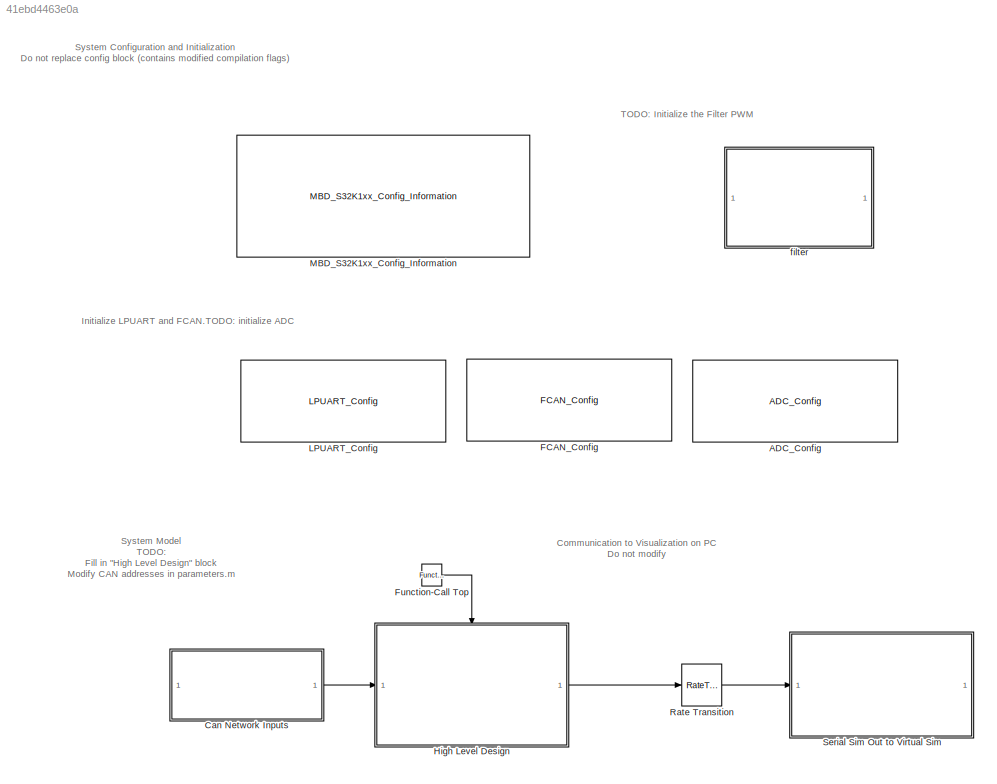
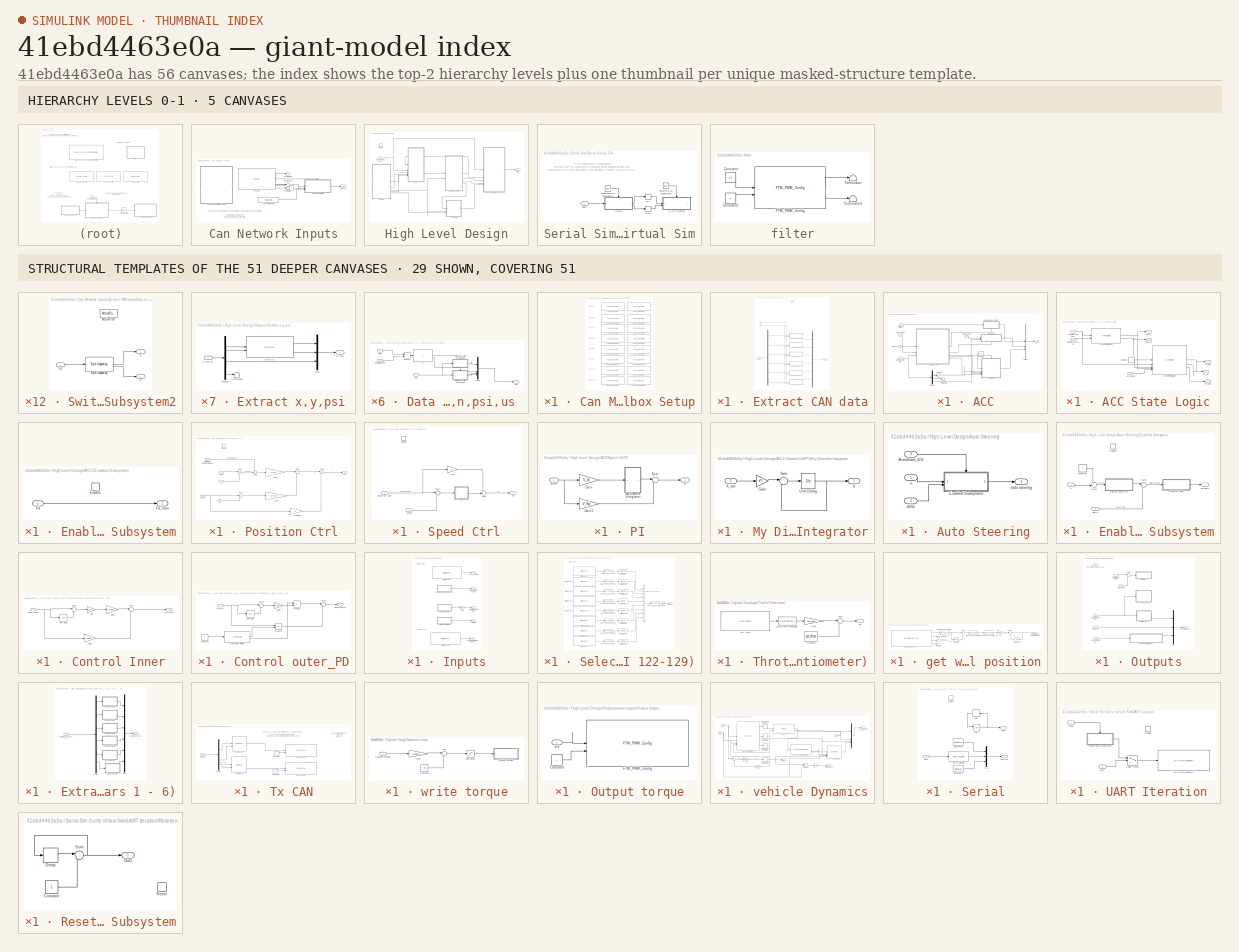
[diagram: thumbnail index - top-2 hierarchy levels (5 canvases) + 29 structural-template representatives of the remaining 51 canvases]
MODEL slx_41ebd4463e0a
KIND model
CONFIG AbsTol = auto
CONFIG EnableMultiTasking = on
CONFIG FixedStep = auto
CONFIG InitFcn = mbd_s32k_consistency_checks(bdroot(gcs));
CONFIG MaxStep = auto
CONFIG MinStep = auto
CONFIG RelTol = 1e-3
CONFIG SampleTimeConstraint = Unconstrained
CONFIG SolverName = FixedStepDiscrete
CONFIG StartTime = 0.0
CONFIG StopTime = 10.0
BLOCK [Reference] ADC_Config  REF=mbd_s32k1xx_ec_toolbox/Motor Control Blocks/ADC Blocks/ADC_Config
  SourceBlock = mbd_s32k1xx_ec_toolbox/Motor Control Blocks/ADC Blocks/ADC_Config
  SourceType = adc_s32k_config_block
BLOCK [SubSystem] Can Network Inputs
BLOCK [Constant] Can Network Inputs/Array of 6 base IDs
  Value = base_ids
BLOCK [SubSystem] Can Network Inputs/Can Message Mailbox Setup
BLOCK [Reference] Can Network Inputs/Can Message Mailbox Setup/FCAN_Receive  REF=mbd_s32k1xx_ec_toolbox/Communication Blocks/CAN Blocks/FCAN_Receive
  SourceBlock = mbd_s32k1xx_ec_toolbox/Communication Blocks/CAN Blocks/FCAN_Receive
  SourceType = fcan_s32k_receive
BLOCK [Reference] Can Network Inputs/Can Message Mailbox Setup/FCAN_Receive1  REF=mbd_s32k1xx_ec_toolbox/Communication Blocks/CAN Blocks/FCAN_Receive
  SourceBlock = mbd_s32k1xx_ec_toolbox/Communication Blocks/CAN Blocks/FCAN_Receive
  SourceType = fcan_s32k_receive
BLOCK [Reference] Can Network Inputs/Can Message Mailbox Setup/FCAN_Receive10  REF=mbd_s32k1xx_ec_toolbox/Communication Blocks/CAN Blocks/FCAN_Receive
  SourceBlock = mbd_s32k1xx_ec_toolbox/Communication Blocks/CAN Blocks/FCAN_Receive
  SourceType = fcan_s32k_receive
BLOCK [Reference] Can Network Inputs/Can Message Mailbox Setup/FCAN_Receive11  REF=mbd_s32k1xx_ec_toolbox/Communication Blocks/CAN Blocks/FCAN_Receive
  SourceBlock = mbd_s32k1xx_ec_toolbox/Communication Blocks/CAN Blocks/FCAN_Receive
  SourceType = fcan_s32k_receive
BLOCK [Reference] Can Network Inputs/Can Message Mailbox Setup/FCAN_Receive12  REF=mbd_s32k1xx_ec_toolbox/Communication Blocks/CAN Blocks/FCAN_Receive
  SourceBlock = mbd_s32k1xx_ec_toolbox/Communication Blocks/CAN Blocks/FCAN_Receive
  SourceType = fcan_s32k_receive
BLOCK [Reference] Can Network Inputs/Can Message Mailbox Setup/FCAN_Receive13  REF=mbd_s32k1xx_ec_toolbox/Communication Blocks/CAN Blocks/FCAN_Receive
  SourceBlock = mbd_s32k1xx_ec_toolbox/Communication Blocks/CAN Blocks/FCAN_Receive
  SourceType = fcan_s32k_receive
BLOCK [Reference] Can Network Inputs/Can Message Mailbox Setup/FCAN_Receive14  REF=mbd_s32k1xx_ec_toolbox/Communication Blocks/CAN Blocks/FCAN_Receive
  SourceBlock = mbd_s32k1xx_ec_toolbox/Communication Blocks/CAN Blocks/FCAN_Receive
  SourceType = fcan_s32k_receive
BLOCK [Reference] Can Network Inputs/Can Message Mailbox Setup/FCAN_Receive15  REF=mbd_s32k1xx_ec_toolbox/Communication Blocks/CAN Blocks/FCAN_Receive
  SourceBlock = mbd_s32k1xx_ec_toolbox/Communication Blocks/CAN Blocks/FCAN_Receive
  SourceType = fcan_s32k_receive
BLOCK [Reference] Can Network Inputs/Can Message Mailbox Setup/FCAN_Receive2  REF=mbd_s32k1xx_ec_toolbox/Communication Blocks/CAN Blocks/FCAN_Receive
  SourceBlock = mbd_s32k1xx_ec_toolbox/Communication Blocks/CAN Blocks/FCAN_Receive
  SourceType = fcan_s32k_receive
BLOCK [Reference] Can Network Inputs/Can Message Mailbox Setup/FCAN_Receive3  REF=mbd_s32k1xx_ec_toolbox/Communication Blocks/CAN Blocks/FCAN_Receive
  SourceBlock = mbd_s32k1xx_ec_toolbox/Communication Blocks/CAN Blocks/FCAN_Receive
  SourceType = fcan_s32k_receive
BLOCK [Reference] Can Network Inputs/Can Message Mailbox Setup/FCAN_Receive4  REF=mbd_s32k1xx_ec_toolbox/Communication Blocks/CAN Blocks/FCAN_Receive
  SourceBlock = mbd_s32k1xx_ec_toolbox/Communication Blocks/CAN Blocks/FCAN_Receive
  SourceType = fcan_s32k_receive
BLOCK [Reference] Can Network Inputs/Can Message Mailbox Setup/FCAN_Receive5  REF=mbd_s32k1xx_ec_toolbox/Communication Blocks/CAN Blocks/FCAN_Receive
  SourceBlock = mbd_s32k1xx_ec_toolbox/Communication Blocks/CAN Blocks/FCAN_Receive
  SourceType = fcan_s32k_receive
BLOCK [Reference] Can Network Inputs/Can Message Mailbox Setup/FCAN_Receive6  REF=mbd_s32k1xx_ec_toolbox/Communication Blocks/CAN Blocks/FCAN_Receive
  SourceBlock = mbd_s32k1xx_ec_toolbox/Communication Blocks/CAN Blocks/FCAN_Receive
  SourceType = fcan_s32k_receive
BLOCK [Reference] Can Network Inputs/Can Message Mailbox Setup/FCAN_Receive7  REF=mbd_s32k1xx_ec_toolbox/Communication Blocks/CAN Blocks/FCAN_Receive
  SourceBlock = mbd_s32k1xx_ec_toolbox/Communication Blocks/CAN Blocks/FCAN_Receive
  SourceType = fcan_s32k_receive
BLOCK [Reference] Can Network Inputs/Can Message Mailbox Setup/FCAN_Receive8  REF=mbd_s32k1xx_ec_toolbox/Communication Blocks/CAN Blocks/FCAN_Receive
  SourceBlock = mbd_s32k1xx_ec_toolbox/Communication Blocks/CAN Blocks/FCAN_Receive
  SourceType = fcan_s32k_receive
BLOCK [Reference] Can Network Inputs/Can Message Mailbox Setup/FCAN_Receive9  REF=mbd_s32k1xx_ec_toolbox/Communication Blocks/CAN Blocks/FCAN_Receive
  SourceBlock = mbd_s32k1xx_ec_toolbox/Communication Blocks/CAN Blocks/FCAN_Receive
  SourceType = fcan_s32k_receive
BLOCK [Outport] Can Network Inputs/Cars 1-6
  VectorParamsAs1DForOutWhenUnconnected = off
BLOCK [SubSystem] Can Network Inputs/Extract CAN data
BLOCK [Inport] Can Network Inputs/Extract CAN data/CAN Base IDs (Cars 1-6)
  Port = 3
BLOCK [SubSystem] Can Network Inputs/Extract CAN data/Data to s,n,psi,us 
BLOCK [Inport] Can Network Inputs/Extract CAN data/Data to s,n,psi,us /CAN ID
  Port = 2
BLOCK [Inport] Can Network Inputs/Extract CAN data/Data to s,n,psi,us /Data
  Port = 3
BLOCK [If] Can Network Inputs/Extract CAN data/Data to s,n,psi,us /If
  ElseIfExpressions = u1 == 6
  IfExpression = u1 == 5
  ShowElse = off
BLOCK [Mux] Can Network Inputs/Extract CAN data/Data to s,n,psi,us /Mux3
  DisplayOption = bar
BLOCK [Outport] Can Network Inputs/Extract CAN data/Data to s,n,psi,us /Out1
  VectorParamsAs1DForOutWhenUnconnected = off
BLOCK [Sum] Can Network Inputs/Extract CAN data/Data to s,n,psi,us /Subtract
  IconShape = rectangular
  Inputs = +-
BLOCK [SubSystem] Can Network Inputs/Extract CAN data/Data to s,n,psi,us /Switch Case Action Subsystem2
  TreatAsAtomicUnit = on
BLOCK [ActionPort] Can Network Inputs/Extract CAN data/Data to s,n,psi,us /Switch Case Action Subsystem2/Action Port
  ActionPortLabel = if(u1 == 5)
BLOCK [Reference] Can Network Inputs/Extract CAN data/Data to s,n,psi,us /Switch Case Action Subsystem2/Byte Unpacking   REF=slrealtimeutilitieslib/Byte Unpacking
  SourceBlock = slrealtimeutilitieslib/Byte Unpacking
  SourceType = slreraltimebytepacking
BLOCK [Outport] Can Network Inputs/Extract CAN data/Data to s,n,psi,us /Switch Case Action Subsystem2/n
  Port = 2
  VectorParamsAs1DForOutWhenUnconnected = off
BLOCK [Outport] Can Network Inputs/Extract CAN data/Data to s,n,psi,us /Switch Case Action Subsystem2/s
  VectorParamsAs1DForOutWhenUnconnected = off
BLOCK [Inport] Can Network Inputs/Extract CAN data/Data to s,n,psi,us /Switch Case Action Subsystem2/s,n
BLOCK [SubSystem] Can Network Inputs/Extract CAN data/Data to s,n,psi,us /Switch Case Action Subsystem3
  TreatAsAtomicUnit = on
BLOCK [ActionPort] Can Network Inputs/Extract CAN data/Data to s,n,psi,us /Switch Case Action Subsystem3/Action Port
  ActionPortLabel = elseif(u1 == 6)
BLOCK [Reference] Can Network Inputs/Extract CAN data/Data to s,n,psi,us /Switch Case Action Subsystem3/Byte Unpacking   REF=slrealtimeutilitieslib/Byte Unpacking
  SourceBlock = slrealtimeutilitieslib/Byte Unpacking
  SourceType = slreraltimebytepacking
BLOCK [Outport] Can Network Inputs/Extract CAN data/Data to s,n,psi,us /Switch Case Action Subsystem3/psi
  VectorParamsAs1DForOutWhenUnconnected = off
BLOCK [Inport] Can Network Inputs/Extract CAN data/Data to s,n,psi,us /Switch Case Action Subsystem3/psi,us
BLOCK [Outport] Can Network Inputs/Extract CAN data/Data to s,n,psi,us /Switch Case Action Subsystem3/us
  Port = 2
  VectorParamsAs1DForOutWhenUnconnected = off
BLOCK [Inport] Can Network Inputs/Extract CAN data/Data to s,n,psi,us /Vehicle Base ID
BLOCK [SubSystem] Can Network Inputs/Extract CAN data/Data to s,n,psi,us 1
BLOCK [Inport] Can Network Inputs/Extract CAN data/Data to s,n,psi,us 1/CAN ID
  Port = 2
BLOCK [Inport] Can Network Inputs/Extract CAN data/Data to s,n,psi,us 1/Data
  Port = 3
BLOCK [If] Can Network Inputs/Extract CAN data/Data to s,n,psi,us 1/If
  ElseIfExpressions = u1 == 6
  IfExpression = u1 == 5
  ShowElse = off
BLOCK [Mux] Can Network Inputs/Extract CAN data/Data to s,n,psi,us 1/Mux3
  DisplayOption = bar
BLOCK [Outport] Can Network Inputs/Extract CAN data/Data to s,n,psi,us 1/Out1
  VectorParamsAs1DForOutWhenUnconnected = off
BLOCK [Sum] Can Network Inputs/Extract CAN data/Data to s,n,psi,us 1/Subtract
  IconShape = rectangular
  Inputs = +-
BLOCK [SubSystem] Can Network Inputs/Extract CAN data/Data to s,n,psi,us 1/Switch Case Action Subsystem2
  TreatAsAtomicUnit = on
BLOCK [ActionPort] Can Network Inputs/Extract CAN data/Data to s,n,psi,us 1/Switch Case Action Subsystem2/Action Port
  ActionPortLabel = if(u1 == 5)
BLOCK [Reference] Can Network Inputs/Extract CAN data/Data to s,n,psi,us 1/Switch Case Action Subsystem2/Byte Unpacking   REF=slrealtimeutilitieslib/Byte Unpacking
  SourceBlock = slrealtimeutilitieslib/Byte Unpacking
  SourceType = slreraltimebytepacking
BLOCK [Outport] Can Network Inputs/Extract CAN data/Data to s,n,psi,us 1/Switch Case Action Subsystem2/n
  Port = 2
  VectorParamsAs1DForOutWhenUnconnected = off
BLOCK [Outport] Can Network Inputs/Extract CAN data/Data to s,n,psi,us 1/Switch Case Action Subsystem2/s
  VectorParamsAs1DForOutWhenUnconnected = off
BLOCK [Inport] Can Network Inputs/Extract CAN data/Data to s,n,psi,us 1/Switch Case Action Subsystem2/s,n
BLOCK [SubSystem] Can Network Inputs/Extract CAN data/Data to s,n,psi,us 1/Switch Case Action Subsystem3
  TreatAsAtomicUnit = on
BLOCK [ActionPort] Can Network Inputs/Extract CAN data/Data to s,n,psi,us 1/Switch Case Action Subsystem3/Action Port
  ActionPortLabel = elseif(u1 == 6)
BLOCK [Reference] Can Network Inputs/Extract CAN data/Data to s,n,psi,us 1/Switch Case Action Subsystem3/Byte Unpacking   REF=slrealtimeutilitieslib/Byte Unpacking
  SourceBlock = slrealtimeutilitieslib/Byte Unpacking
  SourceType = slreraltimebytepacking
BLOCK [Outport] Can Network Inputs/Extract CAN data/Data to s,n,psi,us 1/Switch Case Action Subsystem3/psi
  VectorParamsAs1DForOutWhenUnconnected = off
BLOCK [Inport] Can Network Inputs/Extract CAN data/Data to s,n,psi,us 1/Switch Case Action Subsystem3/psi,us
BLOCK [Outport] Can Network Inputs/Extract CAN data/Data to s,n,psi,us 1/Switch Case Action Subsystem3/us
  Port = 2
  VectorParamsAs1DForOutWhenUnconnected = off
BLOCK [Inport] Can Network Inputs/Extract CAN data/Data to s,n,psi,us 1/Vehicle Base ID
BLOCK [SubSystem] Can Network Inputs/Extract CAN data/Data to s,n,psi,us 2
BLOCK [Inport] Can Network Inputs/Extract CAN data/Data to s,n,psi,us 2/CAN ID
  Port = 2
BLOCK [Inport] Can Network Inputs/Extract CAN data/Data to s,n,psi,us 2/Data
  Port = 3
BLOCK [If] Can Network Inputs/Extract CAN data/Data to s,n,psi,us 2/If
  ElseIfExpressions = u1 == 6
  IfExpression = u1 == 5
  ShowElse = off
BLOCK [Mux] Can Network Inputs/Extract CAN data/Data to s,n,psi,us 2/Mux3
  DisplayOption = bar
BLOCK [Outport] Can Network Inputs/Extract CAN data/Data to s,n,psi,us 2/Out1
  VectorParamsAs1DForOutWhenUnconnected = off
BLOCK [Sum] Can Network Inputs/Extract CAN data/Data to s,n,psi,us 2/Subtract
  IconShape = rectangular
  Inputs = +-
BLOCK [SubSystem] Can Network Inputs/Extract CAN data/Data to s,n,psi,us 2/Switch Case Action Subsystem2
  TreatAsAtomicUnit = on
BLOCK [ActionPort] Can Network Inputs/Extract CAN data/Data to s,n,psi,us 2/Switch Case Action Subsystem2/Action Port
  ActionPortLabel = if(u1 == 5)
BLOCK [Reference] Can Network Inputs/Extract CAN data/Data to s,n,psi,us 2/Switch Case Action Subsystem2/Byte Unpacking   REF=slrealtimeutilitieslib/Byte Unpacking
  SourceBlock = slrealtimeutilitieslib/Byte Unpacking
  SourceType = slreraltimebytepacking
BLOCK [Outport] Can Network Inputs/Extract CAN data/Data to s,n,psi,us 2/Switch Case Action Subsystem2/n
  Port = 2
  VectorParamsAs1DForOutWhenUnconnected = off
BLOCK [Outport] Can Network Inputs/Extract CAN data/Data to s,n,psi,us 2/Switch Case Action Subsystem2/s
  VectorParamsAs1DForOutWhenUnconnected = off
BLOCK [Inport] Can Network Inputs/Extract CAN data/Data to s,n,psi,us 2/Switch Case Action Subsystem2/s,n
BLOCK [SubSystem] Can Network Inputs/Extract CAN data/Data to s,n,psi,us 2/Switch Case Action Subsystem3
  TreatAsAtomicUnit = on
BLOCK [ActionPort] Can Network Inputs/Extract CAN data/Data to s,n,psi,us 2/Switch Case Action Subsystem3/Action Port
  ActionPortLabel = elseif(u1 == 6)
BLOCK [Reference] Can Network Inputs/Extract CAN data/Data to s,n,psi,us 2/Switch Case Action Subsystem3/Byte Unpacking   REF=slrealtimeutilitieslib/Byte Unpacking
  SourceBlock = slrealtimeutilitieslib/Byte Unpacking
  SourceType = slreraltimebytepacking
BLOCK [Outport] Can Network Inputs/Extract CAN data/Data to s,n,psi,us 2/Switch Case Action Subsystem3/psi
  VectorParamsAs1DForOutWhenUnconnected = off
BLOCK [Inport] Can Network Inputs/Extract CAN data/Data to s,n,psi,us 2/Switch Case Action Subsystem3/psi,us
BLOCK [Outport] Can Network Inputs/Extract CAN data/Data to s,n,psi,us 2/Switch Case Action Subsystem3/us
  Port = 2
  VectorParamsAs1DForOutWhenUnconnected = off
BLOCK [Inport] Can Network Inputs/Extract CAN data/Data to s,n,psi,us 2/Vehicle Base ID
BLOCK [SubSystem] Can Network Inputs/Extract CAN data/Data to s,n,psi,us 3
BLOCK [Inport] Can Network Inputs/Extract CAN data/Data to s,n,psi,us 3/CAN ID
  Port = 2
BLOCK [Inport] Can Network Inputs/Extract CAN data/Data to s,n,psi,us 3/Data
  Port = 3
BLOCK [If] Can Network Inputs/Extract CAN data/Data to s,n,psi,us 3/If
  ElseIfExpressions = u1 == 6
  IfExpression = u1 == 5
  ShowElse = off
BLOCK [Mux] Can Network Inputs/Extract CAN data/Data to s,n,psi,us 3/Mux3
  DisplayOption = bar
BLOCK [Outport] Can Network Inputs/Extract CAN data/Data to s,n,psi,us 3/Out1
  VectorParamsAs1DForOutWhenUnconnected = off
BLOCK [Sum] Can Network Inputs/Extract CAN data/Data to s,n,psi,us 3/Subtract
  IconShape = rectangular
  Inputs = +-
BLOCK [SubSystem] Can Network Inputs/Extract CAN data/Data to s,n,psi,us 3/Switch Case Action Subsystem2
  TreatAsAtomicUnit = on
BLOCK [ActionPort] Can Network Inputs/Extract CAN data/Data to s,n,psi,us 3/Switch Case Action Subsystem2/Action Port
  ActionPortLabel = if(u1 == 5)
BLOCK [Reference] Can Network Inputs/Extract CAN data/Data to s,n,psi,us 3/Switch Case Action Subsystem2/Byte Unpacking   REF=slrealtimeutilitieslib/Byte Unpacking
  SourceBlock = slrealtimeutilitieslib/Byte Unpacking
  SourceType = slreraltimebytepacking
BLOCK [Outport] Can Network Inputs/Extract CAN data/Data to s,n,psi,us 3/Switch Case Action Subsystem2/n
  Port = 2
  VectorParamsAs1DForOutWhenUnconnected = off
BLOCK [Outport] Can Network Inputs/Extract CAN data/Data to s,n,psi,us 3/Switch Case Action Subsystem2/s
  VectorParamsAs1DForOutWhenUnconnected = off
BLOCK [Inport] Can Network Inputs/Extract CAN data/Data to s,n,psi,us 3/Switch Case Action Subsystem2/s,n
BLOCK [SubSystem] Can Network Inputs/Extract CAN data/Data to s,n,psi,us 3/Switch Case Action Subsystem3
  TreatAsAtomicUnit = on
BLOCK [ActionPort] Can Network Inputs/Extract CAN data/Data to s,n,psi,us 3/Switch Case Action Subsystem3/Action Port
  ActionPortLabel = elseif(u1 == 6)
BLOCK [Reference] Can Network Inputs/Extract CAN data/Data to s,n,psi,us 3/Switch Case Action Subsystem3/Byte Unpacking   REF=slrealtimeutilitieslib/Byte Unpacking
  SourceBlock = slrealtimeutilitieslib/Byte Unpacking
  SourceType = slreraltimebytepacking
BLOCK [Outport] Can Network Inputs/Extract CAN data/Data to s,n,psi,us 3/Switch Case Action Subsystem3/psi
  VectorParamsAs1DForOutWhenUnconnected = off
BLOCK [Inport] Can Network Inputs/Extract CAN data/Data to s,n,psi,us 3/Switch Case Action Subsystem3/psi,us
BLOCK [Outport] Can Network Inputs/Extract CAN data/Data to s,n,psi,us 3/Switch Case Action Subsystem3/us
  Port = 2
  VectorParamsAs1DForOutWhenUnconnected = off
BLOCK [Inport] Can Network Inputs/Extract CAN data/Data to s,n,psi,us 3/Vehicle Base ID
BLOCK [SubSystem] Can Network Inputs/Extract CAN data/Data to s,n,psi,us 4
BLOCK [Inport] Can Network Inputs/Extract CAN data/Data to s,n,psi,us 4/CAN ID
  Port = 2
BLOCK [Inport] Can Network Inputs/Extract CAN data/Data to s,n,psi,us 4/Data
  Port = 3
BLOCK [If] Can Network Inputs/Extract CAN data/Data to s,n,psi,us 4/If
  ElseIfExpressions = u1 == 6
  IfExpression = u1 == 5
  ShowElse = off
BLOCK [Mux] Can Network Inputs/Extract CAN data/Data to s,n,psi,us 4/Mux3
  DisplayOption = bar
BLOCK [Outport] Can Network Inputs/Extract CAN data/Data to s,n,psi,us 4/Out1
  VectorParamsAs1DForOutWhenUnconnected = off
BLOCK [Sum] Can Network Inputs/Extract CAN data/Data to s,n,psi,us 4/Subtract
  IconShape = rectangular
  Inputs = +-
BLOCK [SubSystem] Can Network Inputs/Extract CAN data/Data to s,n,psi,us 4/Switch Case Action Subsystem2
  TreatAsAtomicUnit = on
BLOCK [ActionPort] Can Network Inputs/Extract CAN data/Data to s,n,psi,us 4/Switch Case Action Subsystem2/Action Port
  ActionPortLabel = if(u1 == 5)
BLOCK [Reference] Can Network Inputs/Extract CAN data/Data to s,n,psi,us 4/Switch Case Action Subsystem2/Byte Unpacking   REF=slrealtimeutilitieslib/Byte Unpacking
  SourceBlock = slrealtimeutilitieslib/Byte Unpacking
  SourceType = slreraltimebytepacking
BLOCK [Outport] Can Network Inputs/Extract CAN data/Data to s,n,psi,us 4/Switch Case Action Subsystem2/n
  Port = 2
  VectorParamsAs1DForOutWhenUnconnected = off
BLOCK [Outport] Can Network Inputs/Extract CAN data/Data to s,n,psi,us 4/Switch Case Action Subsystem2/s
  VectorParamsAs1DForOutWhenUnconnected = off
BLOCK [Inport] Can Network Inputs/Extract CAN data/Data to s,n,psi,us 4/Switch Case Action Subsystem2/s,n
BLOCK [SubSystem] Can Network Inputs/Extract CAN data/Data to s,n,psi,us 4/Switch Case Action Subsystem3
  TreatAsAtomicUnit = on
BLOCK [ActionPort] Can Network Inputs/Extract CAN data/Data to s,n,psi,us 4/Switch Case Action Subsystem3/Action Port
  ActionPortLabel = elseif(u1 == 6)
BLOCK [Reference] Can Network Inputs/Extract CAN data/Data to s,n,psi,us 4/Switch Case Action Subsystem3/Byte Unpacking   REF=slrealtimeutilitieslib/Byte Unpacking
  SourceBlock = slrealtimeutilitieslib/Byte Unpacking
  SourceType = slreraltimebytepacking
BLOCK [Outport] Can Network Inputs/Extract CAN data/Data to s,n,psi,us 4/Switch Case Action Subsystem3/psi
  VectorParamsAs1DForOutWhenUnconnected = off
BLOCK [Inport] Can Network Inputs/Extract CAN data/Data to s,n,psi,us 4/Switch Case Action Subsystem3/psi,us
BLOCK [Outport] Can Network Inputs/Extract CAN data/Data to s,n,psi,us 4/Switch Case Action Subsystem3/us
  Port = 2
  VectorParamsAs1DForOutWhenUnconnected = off
BLOCK [Inport] Can Network Inputs/Extract CAN data/Data to s,n,psi,us 4/Vehicle Base ID
BLOCK [SubSystem] Can Network Inputs/Extract CAN data/Data to s,n,psi,us 5
BLOCK [Inport] Can Network Inputs/Extract CAN data/Data to s,n,psi,us 5/CAN ID
  Port = 2
BLOCK [Inport] Can Network Inputs/Extract CAN data/Data to s,n,psi,us 5/Data
  Port = 3
BLOCK [If] Can Network Inputs/Extract CAN data/Data to s,n,psi,us 5/If
  ElseIfExpressions = u1 == 6
  IfExpression = u1 == 5
  ShowElse = off
BLOCK [Mux] Can Network Inputs/Extract CAN data/Data to s,n,psi,us 5/Mux3
  DisplayOption = bar
BLOCK [Outport] Can Network Inputs/Extract CAN data/Data to s,n,psi,us 5/Out1
  VectorParamsAs1DForOutWhenUnconnected = off
BLOCK [Sum] Can Network Inputs/Extract CAN data/Data to s,n,psi,us 5/Subtract
  IconShape = rectangular
  Inputs = +-
BLOCK [SubSystem] Can Network Inputs/Extract CAN data/Data to s,n,psi,us 5/Switch Case Action Subsystem2
  TreatAsAtomicUnit = on
BLOCK [ActionPort] Can Network Inputs/Extract CAN data/Data to s,n,psi,us 5/Switch Case Action Subsystem2/Action Port
  ActionPortLabel = if(u1 == 5)
BLOCK [Reference] Can Network Inputs/Extract CAN data/Data to s,n,psi,us 5/Switch Case Action Subsystem2/Byte Unpacking   REF=slrealtimeutilitieslib/Byte Unpacking
  SourceBlock = slrealtimeutilitieslib/Byte Unpacking
  SourceType = slreraltimebytepacking
BLOCK [Outport] Can Network Inputs/Extract CAN data/Data to s,n,psi,us 5/Switch Case Action Subsystem2/n
  Port = 2
  VectorParamsAs1DForOutWhenUnconnected = off
BLOCK [Outport] Can Network Inputs/Extract CAN data/Data to s,n,psi,us 5/Switch Case Action Subsystem2/s
  VectorParamsAs1DForOutWhenUnconnected = off
BLOCK [Inport] Can Network Inputs/Extract CAN data/Data to s,n,psi,us 5/Switch Case Action Subsystem2/s,n
BLOCK [SubSystem] Can Network Inputs/Extract CAN data/Data to s,n,psi,us 5/Switch Case Action Subsystem3
  TreatAsAtomicUnit = on
BLOCK [ActionPort] Can Network Inputs/Extract CAN data/Data to s,n,psi,us 5/Switch Case Action Subsystem3/Action Port
  ActionPortLabel = elseif(u1 == 6)
BLOCK [Reference] Can Network Inputs/Extract CAN data/Data to s,n,psi,us 5/Switch Case Action Subsystem3/Byte Unpacking   REF=slrealtimeutilitieslib/Byte Unpacking
  SourceBlock = slrealtimeutilitieslib/Byte Unpacking
  SourceType = slreraltimebytepacking
BLOCK [Outport] Can Network Inputs/Extract CAN data/Data to s,n,psi,us 5/Switch Case Action Subsystem3/psi
  VectorParamsAs1DForOutWhenUnconnected = off
BLOCK [Inport] Can Network Inputs/Extract CAN data/Data to s,n,psi,us 5/Switch Case Action Subsystem3/psi,us
BLOCK [Outport] Can Network Inputs/Extract CAN data/Data to s,n,psi,us 5/Switch Case Action Subsystem3/us
  Port = 2
  VectorParamsAs1DForOutWhenUnconnected = off
BLOCK [Inport] Can Network Inputs/Extract CAN data/Data to s,n,psi,us 5/Vehicle Base ID
BLOCK [Demux] Can Network Inputs/Extract CAN data/Demux
  Outputs = 6
BLOCK [Inport] Can Network Inputs/Extract CAN data/ID
BLOCK [Mux] Can Network Inputs/Extract CAN data/Mux
  DisplayOption = bar
  Inputs = 6
BLOCK [Inport] Can Network Inputs/Extract CAN data/data
  Port = 2
BLOCK [TriggerPort] Can Network Inputs/Extract CAN data/function
  StatesWhenEnabling = held
  TriggerType = function-call
  VariantControl = Variant
BLOCK [Outport] Can Network Inputs/Extract CAN data/s, n, psi, us (Cars 1-6)
  VectorParamsAs1DForOutWhenUnconnected = off
BLOCK [Reference] Can Network Inputs/FCAN_Isr  REF=mbd_s32k1xx_ec_toolbox/Communication Blocks/CAN Blocks/FCAN_Isr
  SourceBlock = mbd_s32k1xx_ec_toolbox/Communication Blocks/CAN Blocks/FCAN_Isr
  SourceType = fcan_s32k_isr
BLOCK [Terminator] Can Network Inputs/Terminator1
BLOCK [Terminator] Can Network Inputs/Terminator2
BLOCK [Terminator] Can Network Inputs/Terminator3
BLOCK [Reference] FCAN_Config  REF=mbd_s32k1xx_ec_toolbox/Communication Blocks/CAN Blocks/FCAN_Config
  Priority = 2
  SourceBlock = mbd_s32k1xx_ec_toolbox/Communication Blocks/CAN Blocks/FCAN_Config
  SourceType = fcan_s32k_config
BLOCK [Reference] Function-Call Top  REF=simulink/Ports &
Subsystems/Function-Call
Generator
  SourceBlock = simulink/Ports &\nSubsystems/Function-Call\nGenerator
  SourceType = Function-Call Generator
BLOCK [SubSystem] High Level Design
  TreatAsAtomicUnit = on
BLOCK [SubSystem] High Level Design/ACC
BLOCK [SubSystem] High Level Design/ACC/ACC State Logic
BLOCK [Inport] High Level Design/ACC/ACC State Logic/ACC_Enable
BLOCK [Constant] High Level Design/ACC/ACC State Logic/Constant
  OutDataTypeStr = single
  Value = H
BLOCK [S-Function] High Level Design/ACC/ACC State Logic/S-Function Builder1
  CopyFcn = set_param(gcbh,'LinkStatus','none')
  EnableBusSupport = off
  FunctionName = PickLead
  OpenFcn = sfunctionwizard(gcbh)
  SFcnIsStateOwnerBlock = off
  SFunctionDeploymentMode = off
  SFunctionModules = PickLead_wrapper.c
BLOCK [S-Function] High Level Design/ACC/ACC State Logic/S-Function Builder2
  CopyFcn = set_param(gcbh,'LinkStatus','none')
  EnableBusSupport = off
  FunctionName = modeSelec
  OpenFcn = sfunctionwizard(gcbh)
  SFcnIsStateOwnerBlock = off
  SFunctionDeploymentMode = off
  SFunctionModules = modeSelec_wrapper.c
BLOCK [Outport] High Level Design/ACC/ACC State Logic/en_man
BLOCK [Outport] High Level Design/ACC/ACC State Logic/en_pos
  Port = 3
BLOCK [Outport] High Level Design/ACC/ACC State Logic/en_vel
  Port = 2
BLOCK [Outport] High Level Design/ACC/ACC State Logic/lead_s
  Port = 4
BLOCK [Outport] High Level Design/ACC/ACC State Logic/lead_us
  Port = 5
BLOCK [Inport] High Level Design/ACC/ACC State Logic/s,n,psi,us (Cars 1 - 6)
  Port = 2
BLOCK [Inport] High Level Design/ACC/ACC State Logic/s,n,psi,us (This Car)
  Port = 3
BLOCK [Inport] High Level Design/ACC/ACC_enable
  Port = 3
BLOCK [Inport] High Level Design/ACC/Cars 1-6
  Port = 2
BLOCK [Constant] High Level Design/ACC/Constant
  OutDataTypeStr = single
  Value = H
BLOCK [Demux] High Level Design/ACC/Demux
BLOCK [SubSystem] High Level Design/ACC/Enabled Subsystem
  TreatAsAtomicUnit = on
BLOCK [EnablePort] High Level Design/ACC/Enabled Subsystem/Enable
BLOCK [Inport] High Level Design/ACC/Enabled Subsystem/Fd
BLOCK [Outport] High Level Design/ACC/Enabled Subsystem/Fd_man
  OutDataTypeStr = single
BLOCK [Outport] High Level Design/ACC/Fd
BLOCK [Merge] High Level Design/ACC/Merge
  Inputs = 3
BLOCK [SubSystem] High Level Design/ACC/Position Ctrl
  TreatAsAtomicUnit = on
BLOCK [Gain] High Level Design/ACC/Position Ctrl/D-gain
  Gain = 2.45*m
  OutDataTypeStr = Inherit: Same as input
  ParamDataTypeStr = Inherit: Same as input
  SaturateOnIntegerOverflow = on
BLOCK [EnablePort] High Level Design/ACC/Position Ctrl/Enable
BLOCK [Outport] High Level Design/ACC/Position Ctrl/Fd
BLOCK [Gain] High Level Design/ACC/Position Ctrl/Feed-forward
  Gain = b
  OutDataTypeStr = Inherit: Same as input
  ParamDataTypeStr = Inherit: Same as input
  SaturateOnIntegerOverflow = on
BLOCK [Inport] High Level Design/ACC/Position Ctrl/Lead s
  Port = 3
BLOCK [Inport] High Level Design/ACC/Position Ctrl/Lead us
  Port = 5
BLOCK [Gain] High Level Design/ACC/Position Ctrl/P-gain
  Gain = -1.5*m
  OutDataTypeStr = Inherit: Same as input
  ParamDataTypeStr = Inherit: Same as input
  SaturateOnIntegerOverflow = on
BLOCK [Inport] High Level Design/ACC/Position Ctrl/Reference Following Distance
BLOCK [Sum] High Level Design/ACC/Position Ctrl/Sum1
  Inputs = |++
  SaturateOnIntegerOverflow = on
BLOCK [Sum] High Level Design/ACC/Position Ctrl/Sum2
  Inputs = +-|
  NameLocation = top
  SaturateOnIntegerOverflow = on
BLOCK [Sum] High Level Design/ACC/Position Ctrl/Sum3
  Inputs = |+-
  SaturateOnIntegerOverflow = on
BLOCK [Sum] High Level Design/ACC/Position Ctrl/Sum4
  Inputs = |+-
  SaturateOnIntegerOverflow = on
BLOCK [Sum] High Level Design/ACC/Position Ctrl/Sum5
  Inputs = |++
  OutDataTypeStr = single
  SaturateOnIntegerOverflow = on
BLOCK [Inport] High Level Design/ACC/Position Ctrl/s
  Port = 2
BLOCK [Inport] High Level Design/ACC/Position Ctrl/us
  Port = 4
BLOCK [SubSystem] High Level Design/ACC/Speed Ctrl
  TreatAsAtomicUnit = on
BLOCK [EnablePort] High Level Design/ACC/Speed Ctrl/Enable
BLOCK [Outport] High Level Design/ACC/Speed Ctrl/Fd
BLOCK [Gain] High Level Design/ACC/Speed Ctrl/Gain
  Gain = b
  OutDataTypeStr = Inherit: Same as input
  ParamDataTypeStr = Inherit: Same as input
  SaturateOnIntegerOverflow = on
BLOCK [SubSystem] High Level Design/ACC/Speed Ctrl/PI
BLOCK [Inport] High Level Design/ACC/Speed Ctrl/PI/Error
BLOCK [Gain] High Level Design/ACC/Speed Ctrl/PI/Gain
  Gain = V_Ki
  OutDataTypeStr = Inherit: Same as input
  ParamDataTypeStr = Inherit: Same as input
  SaturateOnIntegerOverflow = on
BLOCK [Gain] High Level Design/ACC/Speed Ctrl/PI/Gain1
  Gain = V_Kp
  OutDataTypeStr = Inherit: Same as input
  ParamDataTypeStr = Inherit: Same as input
  SaturateOnIntegerOverflow = on
BLOCK [SubSystem] High Level Design/ACC/Speed Ctrl/PI/My Discrete Integrator
BLOCK [Gain] High Level Design/ACC/Speed Ctrl/PI/My Discrete Integrator/Gain
  Gain = dT
  OutDataTypeStr = Inherit: Same as input
  ParamDataTypeStr = Inherit: Same as input
  SaturateOnIntegerOverflow = on
BLOCK [Sum] High Level Design/ACC/Speed Ctrl/PI/My Discrete Integrator/Sum
  InputSameDT = on
  Inputs = |++
  OutDataTypeStr = Inherit: Same as first input
  SaturateOnIntegerOverflow = on
BLOCK [UnitDelay] High Level Design/ACC/Speed Ctrl/PI/My Discrete Integrator/Unit Delay
  HasFrameUpgradeWarning = on
  SampleTime = -1
BLOCK [Outport] High Level Design/ACC/Speed Ctrl/PI/My Discrete Integrator/X
BLOCK [Inport] High Level Design/ACC/Speed Ctrl/PI/My Discrete Integrator/X_dot
BLOCK [Sum] High Level Design/ACC/Speed Ctrl/PI/Sum
  Inputs = |++
  SaturateOnIntegerOverflow = on
BLOCK [Outport] High Level Design/ACC/Speed Ctrl/PI/U
BLOCK [Inport] High Level Design/ACC/Speed Ctrl/Speed
  Port = 2
BLOCK [Inport] High Level Design/ACC/Speed Ctrl/Speed Set Point
BLOCK [Sum] High Level Design/ACC/Speed Ctrl/Sum
  Inputs = ++|
  OutDataTypeStr = single
  SaturateOnIntegerOverflow = on
BLOCK [Sum] High Level Design/ACC/Speed Ctrl/Sum1
  Inputs = |+-
  SaturateOnIntegerOverflow = on
BLOCK [Terminator] High Level Design/ACC/Terminator
BLOCK [Terminator] High Level Design/ACC/Terminator1
BLOCK [Inport] High Level Design/ACC/cruise speed
  Port = 4
BLOCK [Inport] High Level Design/ACC/s,n,psi,us (This Car)
BLOCK [Inport] High Level Design/ACC/throttle,Fd
  Port = 5
BLOCK [SubSystem] High Level Design/Auto Steering
BLOCK [Inport] High Level Design/Auto Steering/AutoSteer_EN
  Port = 3
BLOCK [SubSystem] High Level Design/Auto Steering/Enabled Subsystem
  TreatAsAtomicUnit = on
BLOCK [SubSystem] High Level Design/Auto Steering/Enabled Subsystem/Control Inner
BLOCK [Inport] High Level Design/Auto Steering/Enabled Subsystem/Control Inner/Delta_target
BLOCK [Gain] High Level Design/Auto Steering/Enabled Subsystem/Control Inner/Gain
  Gain = 1/dT
BLOCK [Gain] High Level Design/Auto Steering/Enabled Subsystem/Control Inner/Gain1
  Gain = Kdm
BLOCK [Gain] High Level Design/Auto Steering/Enabled Subsystem/Control Inner/Gain2
  Gain = Kpm
BLOCK [Sum] High Level Design/Auto Steering/Enabled Subsystem/Control Inner/Sum
  Inputs = |++
BLOCK [Sum] High Level Design/Auto Steering/Enabled Subsystem/Control Inner/Sum1
  Inputs = |+-
BLOCK [UnitDelay] High Level Design/Auto Steering/Enabled Subsystem/Control Inner/Unit Delay
  HasFrameUpgradeWarning = on
  SampleTime = -1
BLOCK [Outport] High Level Design/Auto Steering/Enabled Subsystem/Control Inner/tau_auto
BLOCK [SubSystem] High Level Design/Auto Steering/Enabled Subsystem/Control outer_PD
BLOCK [Constant] High Level Design/Auto Steering/Enabled Subsystem/Control outer_PD/Constant
  OutDataTypeStr = single
  Value = u
BLOCK [Outport] High Level Design/Auto Steering/Enabled Subsystem/Control outer_PD/Delta_desired
BLOCK [Gain] High Level Design/Auto Steering/Enabled Subsystem/Control outer_PD/Gain1
  Gain = 1/dT
BLOCK [Product] High Level Design/Auto Steering/Enabled Subsystem/Control outer_PD/Product
BLOCK [Product] High Level Design/Auto Steering/Enabled Subsystem/Control outer_PD/Product1
BLOCK [S-Function] High Level Design/Auto Steering/Enabled Subsystem/Control outer_PD/S-Function Builder
  CopyFcn = set_param(gcbh,'LinkStatus','none')
  EnableBusSupport = off
  FunctionName = paraCalculation
  OpenFcn = sfunctionwizard(gcbh)
  SFcnIsStateOwnerBlock = off
  SFunctionDeploymentMode = off
  SFunctionModules = paraCalculation_wrapper.c
BLOCK [Sum] High Level Design/Auto Steering/Enabled Subsystem/Control outer_PD/Sum2
  Inputs = |++
BLOCK [Sum] High Level Design/Auto Steering/Enabled Subsystem/Control outer_PD/Sum3
  Inputs = |+-
BLOCK [UnitDelay] High Level Design/Auto Steering/Enabled Subsystem/Control outer_PD/Unit Delay
  HasFrameUpgradeWarning = on
  SampleTime = -1
BLOCK [Inport] High Level Design/Auto Steering/Enabled Subsystem/Control outer_PD/n_error
BLOCK [EnablePort] High Level Design/Auto Steering/Enabled Subsystem/Enable
BLOCK [Sum] High Level Design/Auto Steering/Enabled Subsystem/Sum1
  Inputs = ++|
BLOCK [Sum] High Level Design/Auto Steering/Enabled Subsystem/Sum2
  Inputs = |+-
BLOCK [Inport] High Level Design/Auto Steering/Enabled Subsystem/delta
  Port = 2
BLOCK [Inport] High Level Design/Auto Steering/Enabled Subsystem/n
BLOCK [Constant] High Level Design/Auto Steering/Enabled Subsystem/ndesired
  OutDataTypeStr = single
  Value = 0
BLOCK [Outport] High Level Design/Auto Steering/Enabled Subsystem/tau_auto
  OutDataTypeStr = single
BLOCK [Outport] High Level Design/Auto Steering/auto steering
BLOCK [Inport] High Level Design/Auto Steering/delta
  Port = 2
BLOCK [Inport] High Level Design/Auto Steering/n
BLOCK [SubSystem] High Level Design/Inputs
BLOCK [Outport] High Level Design/Inputs/ACC_enable
  VectorParamsAs1DForOutWhenUnconnected = off
BLOCK [Outport] High Level Design/Inputs/Automatic Steering Enable
  Port = 5
  VectorParamsAs1DForOutWhenUnconnected = off
BLOCK [Outport] High Level Design/Inputs/Cruise Control Speed
  Port = 2
  VectorParamsAs1DForOutWhenUnconnected = off
BLOCK [Reference] High Level Design/Inputs/Digital_Input  REF=mbd_s32k1xx_ec_toolbox/GPIO Blocks/Digital_Input
  SourceBlock = mbd_s32k1xx_ec_toolbox/GPIO Blocks/Digital_Input
  SourceType = gpio_s32k_input
BLOCK [Reference] High Level Design/Inputs/Digital_Input1  REF=mbd_s32k1xx_ec_toolbox/GPIO Blocks/Digital_Input
  SourceBlock = mbd_s32k1xx_ec_toolbox/GPIO Blocks/Digital_Input
  SourceType = gpio_s32k_input
BLOCK [Gain] High Level Design/Inputs/Gain
  Gain = -R
  OutDataTypeStr = single
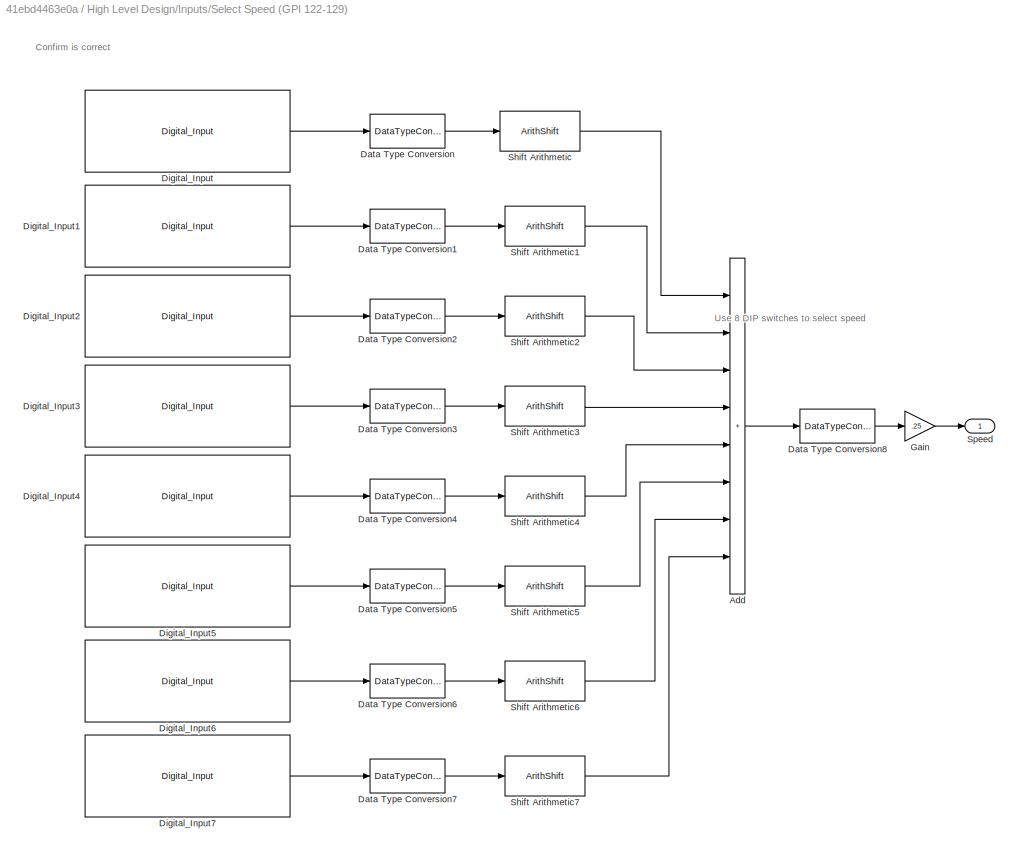
BLOCK [SubSystem] High Level Design/Inputs/Select Speed (GPI 122-129)
BLOCK [Sum] High Level Design/Inputs/Select Speed (GPI 122-129)/Add
  IconShape = rectangular
  Inputs = ++++++++
BLOCK [DataTypeConversion] High Level Design/Inputs/Select Speed (GPI 122-129)/Data Type Conversion
  OutDataTypeStr = uint8
  RndMeth = Floor
  SaturateOnIntegerOverflow = off
BLOCK [DataTypeConversion] High Level Design/Inputs/Select Speed (GPI 122-129)/Data Type Conversion1
  OutDataTypeStr = uint8
  RndMeth = Floor
  SaturateOnIntegerOverflow = off
BLOCK [DataTypeConversion] High Level Design/Inputs/Select Speed (GPI 122-129)/Data Type Conversion2
  OutDataTypeStr = uint8
  RndMeth = Floor
  SaturateOnIntegerOverflow = off
BLOCK [DataTypeConversion] High Level Design/Inputs/Select Speed (GPI 122-129)/Data Type Conversion3
  OutDataTypeStr = uint8
  RndMeth = Floor
  SaturateOnIntegerOverflow = off
BLOCK [DataTypeConversion] High Level Design/Inputs/Select Speed (GPI 122-129)/Data Type Conversion4
  OutDataTypeStr = uint8
  RndMeth = Floor
  SaturateOnIntegerOverflow = off
BLOCK [DataTypeConversion] High Level Design/Inputs/Select Speed (GPI 122-129)/Data Type Conversion5
  OutDataTypeStr = uint8
  RndMeth = Floor
  SaturateOnIntegerOverflow = off
BLOCK [DataTypeConversion] High Level Design/Inputs/Select Speed (GPI 122-129)/Data Type Conversion6
  OutDataTypeStr = uint8
  RndMeth = Floor
  SaturateOnIntegerOverflow = off
BLOCK [DataTypeConversion] High Level Design/Inputs/Select Speed (GPI 122-129)/Data Type Conversion7
  OutDataTypeStr = uint8
  RndMeth = Floor
  SaturateOnIntegerOverflow = off
BLOCK [DataTypeConversion] High Level Design/Inputs/Select Speed (GPI 122-129)/Data Type Conversion8
  OutDataTypeStr = single
  RndMeth = Floor
  SaturateOnIntegerOverflow = off
BLOCK [Reference] High Level Design/Inputs/Select Speed (GPI 122-129)/Digital_Input  REF=mbd_s32k1xx_ec_toolbox/GPIO Blocks/Digital_Input
  SourceBlock = mbd_s32k1xx_ec_toolbox/GPIO Blocks/Digital_Input
  SourceType = gpio_s32k_input
BLOCK [Reference] High Level Design/Inputs/Select Speed (GPI 122-129)/Digital_Input1  REF=mbd_s32k1xx_ec_toolbox/GPIO Blocks/Digital_Input
  SourceBlock = mbd_s32k1xx_ec_toolbox/GPIO Blocks/Digital_Input
  SourceType = gpio_s32k_input
BLOCK [Reference] High Level Design/Inputs/Select Speed (GPI 122-129)/Digital_Input2  REF=mbd_s32k1xx_ec_toolbox/GPIO Blocks/Digital_Input
  SourceBlock = mbd_s32k1xx_ec_toolbox/GPIO Blocks/Digital_Input
  SourceType = gpio_s32k_input
BLOCK [Reference] High Level Design/Inputs/Select Speed (GPI 122-129)/Digital_Input3  REF=mbd_s32k1xx_ec_toolbox/GPIO Blocks/Digital_Input
  SourceBlock = mbd_s32k1xx_ec_toolbox/GPIO Blocks/Digital_Input
  SourceType = gpio_s32k_input
BLOCK [Reference] High Level Design/Inputs/Select Speed (GPI 122-129)/Digital_Input4  REF=mbd_s32k1xx_ec_toolbox/GPIO Blocks/Digital_Input
  SourceBlock = mbd_s32k1xx_ec_toolbox/GPIO Blocks/Digital_Input
  SourceType = gpio_s32k_input
BLOCK [Reference] High Level Design/Inputs/Select Speed (GPI 122-129)/Digital_Input5  REF=mbd_s32k1xx_ec_toolbox/GPIO Blocks/Digital_Input
  SourceBlock = mbd_s32k1xx_ec_toolbox/GPIO Blocks/Digital_Input
  SourceType = gpio_s32k_input
BLOCK [Reference] High Level Design/Inputs/Select Speed (GPI 122-129)/Digital_Input6  REF=mbd_s32k1xx_ec_toolbox/GPIO Blocks/Digital_Input
  SourceBlock = mbd_s32k1xx_ec_toolbox/GPIO Blocks/Digital_Input
  SourceType = gpio_s32k_input
BLOCK [Reference] High Level Design/Inputs/Select Speed (GPI 122-129)/Digital_Input7  REF=mbd_s32k1xx_ec_toolbox/GPIO Blocks/Digital_Input
  SourceBlock = mbd_s32k1xx_ec_toolbox/GPIO Blocks/Digital_Input
  SourceType = gpio_s32k_input
BLOCK [Gain] High Level Design/Inputs/Select Speed (GPI 122-129)/Gain
  Gain = .25
BLOCK [ArithShift] High Level Design/Inputs/Select Speed (GPI 122-129)/Shift Arithmetic
  InputPortMap = u0
BLOCK [ArithShift] High Level Design/Inputs/Select Speed (GPI 122-129)/Shift Arithmetic1
  BitShiftDirection = Left
  BitShiftNumber = 1
  InputPortMap = u0
BLOCK [ArithShift] High Level Design/Inputs/Select Speed (GPI 122-129)/Shift Arithmetic2
  BitShiftDirection = Left
  BitShiftNumber = 2
  InputPortMap = u0
BLOCK [ArithShift] High Level Design/Inputs/Select Speed (GPI 122-129)/Shift Arithmetic3
  BitShiftDirection = Left
  BitShiftNumber = 3
  InputPortMap = u0
BLOCK [ArithShift] High Level Design/Inputs/Select Speed (GPI 122-129)/Shift Arithmetic4
  BitShiftDirection = Left
  BitShiftNumber = 4
  InputPortMap = u0
BLOCK [ArithShift] High Level Design/Inputs/Select Speed (GPI 122-129)/Shift Arithmetic5
  BitShiftDirection = Left
  BitShiftNumber = 5
  InputPortMap = u0
BLOCK [ArithShift] High Level Design/Inputs/Select Speed (GPI 122-129)/Shift Arithmetic6
  BitShiftDirection = Left
  BitShiftNumber = 6
  InputPortMap = u0
BLOCK [ArithShift] High Level Design/Inputs/Select Speed (GPI 122-129)/Shift Arithmetic7
  BitShiftDirection = Left
  BitShiftNumber = 7
  InputPortMap = u0
BLOCK [Outport] High Level Design/Inputs/Select Speed (GPI 122-129)/Speed
  VectorParamsAs1DForOutWhenUnconnected = off
BLOCK [Outport] High Level Design/Inputs/Steering Angle (delta)
  Port = 3
  VectorParamsAs1DForOutWhenUnconnected = off
BLOCK [Outport] High Level Design/Inputs/Throttle (Fd)
  Port = 4
  VectorParamsAs1DForOutWhenUnconnected = off
BLOCK [SubSystem] High Level Design/Inputs/Throttle (Potentiometer)
BLOCK [Reference] High Level Design/Inputs/Throttle (Potentiometer)/ADC_Start  REF=mbd_s32k1xx_ec_toolbox/Motor Control Blocks/ADC Blocks/ADC_Start
  SourceBlock = mbd_s32k1xx_ec_toolbox/Motor Control Blocks/ADC Blocks/ADC_Start
  SourceType = adc_s32k_start_block
BLOCK [Constant] High Level Design/Inputs/Throttle (Potentiometer)/Constant
  OutDataTypeStr = single
  Value = pot_offset
BLOCK [DataTypeConversion] High Level Design/Inputs/Throttle (Potentiometer)/Data Type Conversion
  OutDataTypeStr = single
  RndMeth = Floor
  SaturateOnIntegerOverflow = off
BLOCK [Outport] High Level Design/Inputs/Throttle (Potentiometer)/Fd
  VectorParamsAs1DForOutWhenUnconnected = off
BLOCK [Gain] High Level Design/Inputs/Throttle (Potentiometer)/Gain
  Gain = pot_gain
BLOCK [Sum] High Level Design/Inputs/Throttle (Potentiometer)/Sum
  Inputs = |+-
BLOCK [SubSystem] High Level Design/Inputs/get wheel position
BLOCK [DataTypeConversion] High Level Design/Inputs/get wheel position/Data Type Conversion1
  OutDataTypeStr = uint16
  RndMeth = Floor
  SaturateOnIntegerOverflow = off
BLOCK [DataTypeConversion] High Level Design/Inputs/get wheel position/Data Type Conversion2
  OutDataTypeStr = int16
  RndMeth = Floor
  SaturateOnIntegerOverflow = off
BLOCK [DataTypeConversion] High Level Design/Inputs/get wheel position/Data Type Conversion3
  OutDataTypeStr = single
  RndMeth = Floor
  SaturateOnIntegerOverflow = off
BLOCK [Outport] High Level Design/Inputs/get wheel position/Haptic Wheel Position (radians)
  VectorParamsAs1DForOutWhenUnconnected = off
BLOCK [Gain] High Level Design/Inputs/get wheel position/K
  Gain = 2*pi/4000
BLOCK [Reference] High Level Design/Inputs/get wheel position/Quadrature_Decoder  REF=mbd_s32k1xx_ec_toolbox/Motor Control Blocks/FTM Blocks/Quadrature_Decoder
  Priority = 1
  SourceBlock = mbd_s32k1xx_ec_toolbox/Motor Control Blocks/FTM Blocks/Quadrature_Decoder
  SourceType = FTM_s32k_qd_block
BLOCK [Sum] High Level Design/Inputs/get wheel position/Sum
  Inputs = |+-
BLOCK [Sum] High Level Design/Inputs/get wheel position/Sum1
  Inputs = |++
BLOCK [Terminator] High Level Design/Inputs/get wheel position/Terminator
BLOCK [Terminator] High Level Design/Inputs/get wheel position/Terminator1
BLOCK [Terminator] High Level Design/Inputs/get wheel position/Terminator2
BLOCK [UnitDelay] High Level Design/Inputs/get wheel position/Unit Delay
  HasFrameUpgradeWarning = on
  SampleTime = -1
BLOCK [UnitDelay] High Level Design/Inputs/get wheel position/Unit Delay1
  HasFrameUpgradeWarning = on
  NameLocation = top
  SampleTime = -1
BLOCK [SubSystem] High Level Design/Outputs
BLOCK [Inport] High Level Design/Outputs/Auto Torque
  Port = 5
BLOCK [SubSystem] High Level Design/Outputs/Extract x,y,psi
BLOCK [SubSystem] High Level Design/Outputs/Extract x,y,psi (Cars 1 - 6)
BLOCK [Demux] High Level Design/Outputs/Extract x,y,psi (Cars 1 - 6)/Demux
  Outputs = 6
BLOCK [SubSystem] High Level Design/Outputs/Extract x,y,psi (Cars 1 - 6)/Extract x,y,psi
BLOCK [Demux] High Level Design/Outputs/Extract x,y,psi (Cars 1 - 6)/Extract x,y,psi/Demux
BLOCK [Mux] High Level Design/Outputs/Extract x,y,psi (Cars 1 - 6)/Extract x,y,psi/Mux
  DisplayOption = bar
  Inputs = 3
BLOCK [Terminator] High Level Design/Outputs/Extract x,y,psi (Cars 1 - 6)/Extract x,y,psi/Terminator
BLOCK [Reference] High Level Design/Outputs/Extract x,y,psi (Cars 1 - 6)/Extract x,y,psi/s,n to x,y  REF=Veh_Sim/s,n to x,y
  SourceBlock = Veh_Sim/s,n to x,y
BLOCK [Inport] High Level Design/Outputs/Extract x,y,psi (Cars 1 - 6)/Extract x,y,psi/s,n,psi,us
BLOCK [Outport] High Level Design/Outputs/Extract x,y,psi (Cars 1 - 6)/Extract x,y,psi/x,y,psi
  VectorParamsAs1DForOutWhenUnconnected = off
BLOCK [SubSystem] High Level Design/Outputs/Extract x,y,psi (Cars 1 - 6)/Extract x,y,psi1
BLOCK [Demux] High Level Design/Outputs/Extract x,y,psi (Cars 1 - 6)/Extract x,y,psi1/Demux
BLOCK [Mux] High Level Design/Outputs/Extract x,y,psi (Cars 1 - 6)/Extract x,y,psi1/Mux
  DisplayOption = bar
  Inputs = 3
BLOCK [Terminator] High Level Design/Outputs/Extract x,y,psi (Cars 1 - 6)/Extract x,y,psi1/Terminator
BLOCK [Reference] High Level Design/Outputs/Extract x,y,psi (Cars 1 - 6)/Extract x,y,psi1/s,n to x,y  REF=Veh_Sim/s,n to x,y
  SourceBlock = Veh_Sim/s,n to x,y
BLOCK [Inport] High Level Design/Outputs/Extract x,y,psi (Cars 1 - 6)/Extract x,y,psi1/s,n,psi,us
BLOCK [Outport] High Level Design/Outputs/Extract x,y,psi (Cars 1 - 6)/Extract x,y,psi1/x,y,psi
  VectorParamsAs1DForOutWhenUnconnected = off
BLOCK [SubSystem] High Level Design/Outputs/Extract x,y,psi (Cars 1 - 6)/Extract x,y,psi2
BLOCK [Demux] High Level Design/Outputs/Extract x,y,psi (Cars 1 - 6)/Extract x,y,psi2/Demux
BLOCK [Mux] High Level Design/Outputs/Extract x,y,psi (Cars 1 - 6)/Extract x,y,psi2/Mux
  DisplayOption = bar
  Inputs = 3
BLOCK [Terminator] High Level Design/Outputs/Extract x,y,psi (Cars 1 - 6)/Extract x,y,psi2/Terminator
BLOCK [Reference] High Level Design/Outputs/Extract x,y,psi (Cars 1 - 6)/Extract x,y,psi2/s,n to x,y  REF=Veh_Sim/s,n to x,y
  SourceBlock = Veh_Sim/s,n to x,y
BLOCK [Inport] High Level Design/Outputs/Extract x,y,psi (Cars 1 - 6)/Extract x,y,psi2/s,n,psi,us
BLOCK [Outport] High Level Design/Outputs/Extract x,y,psi (Cars 1 - 6)/Extract x,y,psi2/x,y,psi
  VectorParamsAs1DForOutWhenUnconnected = off
BLOCK [SubSystem] High Level Design/Outputs/Extract x,y,psi (Cars 1 - 6)/Extract x,y,psi3
BLOCK [Demux] High Level Design/Outputs/Extract x,y,psi (Cars 1 - 6)/Extract x,y,psi3/Demux
BLOCK [Mux] High Level Design/Outputs/Extract x,y,psi (Cars 1 - 6)/Extract x,y,psi3/Mux
  DisplayOption = bar
  Inputs = 3
BLOCK [Terminator] High Level Design/Outputs/Extract x,y,psi (Cars 1 - 6)/Extract x,y,psi3/Terminator
BLOCK [Reference] High Level Design/Outputs/Extract x,y,psi (Cars 1 - 6)/Extract x,y,psi3/s,n to x,y  REF=Veh_Sim/s,n to x,y
  SourceBlock = Veh_Sim/s,n to x,y
BLOCK [Inport] High Level Design/Outputs/Extract x,y,psi (Cars 1 - 6)/Extract x,y,psi3/s,n,psi,us
BLOCK [Outport] High Level Design/Outputs/Extract x,y,psi (Cars 1 - 6)/Extract x,y,psi3/x,y,psi
  VectorParamsAs1DForOutWhenUnconnected = off
BLOCK [SubSystem] High Level Design/Outputs/Extract x,y,psi (Cars 1 - 6)/Extract x,y,psi4
BLOCK [Demux] High Level Design/Outputs/Extract x,y,psi (Cars 1 - 6)/Extract x,y,psi4/Demux
BLOCK [Mux] High Level Design/Outputs/Extract x,y,psi (Cars 1 - 6)/Extract x,y,psi4/Mux
  DisplayOption = bar
  Inputs = 3
BLOCK [Terminator] High Level Design/Outputs/Extract x,y,psi (Cars 1 - 6)/Extract x,y,psi4/Terminator
BLOCK [Reference] High Level Design/Outputs/Extract x,y,psi (Cars 1 - 6)/Extract x,y,psi4/s,n to x,y  REF=Veh_Sim/s,n to x,y
  SourceBlock = Veh_Sim/s,n to x,y
BLOCK [Inport] High Level Design/Outputs/Extract x,y,psi (Cars 1 - 6)/Extract x,y,psi4/s,n,psi,us
BLOCK [Outport] High Level Design/Outputs/Extract x,y,psi (Cars 1 - 6)/Extract x,y,psi4/x,y,psi
  VectorParamsAs1DForOutWhenUnconnected = off
BLOCK [SubSystem] High Level Design/Outputs/Extract x,y,psi (Cars 1 - 6)/Extract x,y,psi5
BLOCK [Demux] High Level Design/Outputs/Extract x,y,psi (Cars 1 - 6)/Extract x,y,psi5/Demux
BLOCK [Mux] High Level Design/Outputs/Extract x,y,psi (Cars 1 - 6)/Extract x,y,psi5/Mux
  DisplayOption = bar
  Inputs = 3
BLOCK [Terminator] High Level Design/Outputs/Extract x,y,psi (Cars 1 - 6)/Extract x,y,psi5/Terminator
BLOCK [Reference] High Level Design/Outputs/Extract x,y,psi (Cars 1 - 6)/Extract x,y,psi5/s,n to x,y  REF=Veh_Sim/s,n to x,y
  SourceBlock = Veh_Sim/s,n to x,y
BLOCK [Inport] High Level Design/Outputs/Extract x,y,psi (Cars 1 - 6)/Extract x,y,psi5/s,n,psi,us
BLOCK [Outport] High Level Design/Outputs/Extract x,y,psi (Cars 1 - 6)/Extract x,y,psi5/x,y,psi
  VectorParamsAs1DForOutWhenUnconnected = off
BLOCK [Mux] High Level Design/Outputs/Extract x,y,psi (Cars 1 - 6)/Mux
  DisplayOption = bar
  Inputs = 6
BLOCK [Inport] High Level Design/Outputs/Extract x,y,psi (Cars 1 - 6)/s,n,psi,us (Cars 1 - 6)
BLOCK [Outport] High Level Design/Outputs/Extract x,y,psi (Cars 1 - 6)/x,y,psi (Cars 1 - 6)
  VectorParamsAs1DForOutWhenUnconnected = off
BLOCK [Demux] High Level Design/Outputs/Extract x,y,psi/Demux
BLOCK [Mux] High Level Design/Outputs/Extract x,y,psi/Mux
  DisplayOption = bar
  Inputs = 3
BLOCK [Terminator] High Level Design/Outputs/Extract x,y,psi/Terminator
BLOCK [Reference] High Level Design/Outputs/Extract x,y,psi/s,n to x,y  REF=Veh_Sim/s,n to x,y
  SourceBlock = Veh_Sim/s,n to x,y
BLOCK [Inport] High Level Design/Outputs/Extract x,y,psi/s,n,psi,us
BLOCK [Outport] High Level Design/Outputs/Extract x,y,psi/x,y,psi
  VectorParamsAs1DForOutWhenUnconnected = off
BLOCK [Mux] High Level Design/Outputs/Mux
  DisplayOption = bar
  Inputs = 3
BLOCK [Inport] High Level Design/Outputs/Self-Aligning Torque
  Port = 4
BLOCK [Sum] High Level Design/Outputs/Sum1
  Inputs = |--
BLOCK [SubSystem] High Level Design/Outputs/Tx CAN
BLOCK [Reference] High Level Design/Outputs/Tx CAN/Byte Pack  REF=etargetslib/Byte Pack
  LibrarySourceBlock = embeddedtargetslib/Host Communication/Byte Pack
  SourceBlock = etargetslib/Byte Pack
  SourceType = Byte pack
BLOCK [Reference] High Level Design/Outputs/Tx CAN/Byte Pack1  REF=etargetslib/Byte Pack
  LibrarySourceBlock = embeddedtargetslib/Host Communication/Byte Pack
  SourceBlock = etargetslib/Byte Pack
  SourceType = Byte pack
BLOCK [Constant] High Level Design/Outputs/Tx CAN/Constant
  OutDataTypeStr = uint8
  Value = 8
BLOCK [Constant] High Level Design/Outputs/Tx CAN/Constant1
  OutDataTypeStr = uint8
  Value = 8
BLOCK [Demux] High Level Design/Outputs/Tx CAN/Demux
BLOCK [Reference] High Level Design/Outputs/Tx CAN/FCAN_Send  REF=mbd_s32k1xx_ec_toolbox/Communication Blocks/CAN Blocks/FCAN_Send
  SourceBlock = mbd_s32k1xx_ec_toolbox/Communication Blocks/CAN Blocks/FCAN_Send
  SourceType = fcan_s32k_send
BLOCK [Reference] High Level Design/Outputs/Tx CAN/FCAN_Send1  REF=mbd_s32k1xx_ec_toolbox/Communication Blocks/CAN Blocks/FCAN_Send
  SourceBlock = mbd_s32k1xx_ec_toolbox/Communication Blocks/CAN Blocks/FCAN_Send
  SourceType = fcan_s32k_send
BLOCK [Inport] High Level Design/Outputs/Tx CAN/s,n,psi,us
BLOCK [Inport] High Level Design/Outputs/s, n, psi, us (Cars 1-6)
BLOCK [Inport] High Level Design/Outputs/s, n, psi, us (This Car)
  Port = 2
BLOCK [Inport] High Level Design/Outputs/u (This car)
  Port = 3
BLOCK [SubSystem] High Level Design/Outputs/write torque
BLOCK [Constant] High Level Design/Outputs/write torque/Constant
  OutDataTypeStr = single
  Value = 0.5
BLOCK [Gain] High Level Design/Outputs/write torque/Gain
  Gain = 1/3162.5
BLOCK [SubSystem] High Level Design/Outputs/write torque/Output torque
BLOCK [Constant] High Level Design/Outputs/write torque/Output torque/Constant
  OutDataTypeStr = single
BLOCK [Reference] High Level Design/Outputs/write torque/Output torque/FTM_PWM_Config  REF=mbd_s32k1xx_ec_toolbox/Motor Control Blocks/FTM Blocks/FTM_PWM_Config
  SourceBlock = mbd_s32k1xx_ec_toolbox/Motor Control Blocks/FTM Blocks/FTM_PWM_Config
  SourceType = FTM_s32k_pwm_config_block
BLOCK [Inport] High Level Design/Outputs/write torque/Output torque/In1
  OutDataTypeStr = single
BLOCK [Inport] High Level Design/Outputs/write torque/Reaction Torque
BLOCK [Saturate] High Level Design/Outputs/write torque/Saturation
  LowerLimit = 0.24
  OutDataTypeStr = single
  UpperLimit = 0.76
BLOCK [Sum] High Level Design/Outputs/write torque/Sum
  Inputs = |++
BLOCK [Outport] High Level Design/Outputs/x, y, pxi (Cars 1-6)
  VectorParamsAs1DForOutWhenUnconnected = off
BLOCK [Outport] High Level Design/Serial
  VectorParamsAs1DForOutWhenUnconnected = off
BLOCK [TriggerPort] High Level Design/function
  StatesWhenEnabling = held
  TriggerType = function-call
  VariantControl = (inherit)
BLOCK [Inport] High Level Design/s,n,psi,us (Cars 1-6)
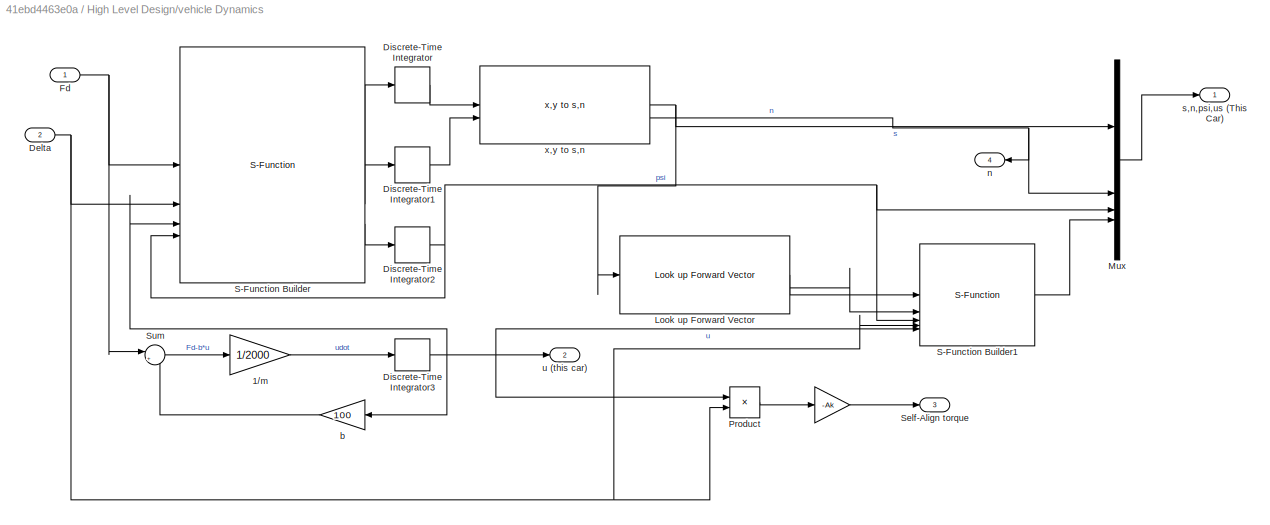
BLOCK [SubSystem] High Level Design/vehicle Dynamics
BLOCK [Gain] High Level Design/vehicle Dynamics/ 
  Gain = -Ak
BLOCK [Gain] High Level Design/vehicle Dynamics/1//m
  Gain = 1/2000
BLOCK [Inport] High Level Design/vehicle Dynamics/Delta
  Port = 2
BLOCK [DiscreteIntegrator] High Level Design/vehicle Dynamics/Discrete-Time Integrator
  ICPrevOutput = DiscIntNeverNeededParam
  ICPrevScaledInput = DiscIntNeverNeededParam
  InitialConditionSetting = Auto
  OutDataTypeStr = single
  SampleTime = -1
BLOCK [DiscreteIntegrator] High Level Design/vehicle Dynamics/Discrete-Time Integrator1
  ICPrevOutput = DiscIntNeverNeededParam
  ICPrevScaledInput = DiscIntNeverNeededParam
  InitialConditionSetting = Auto
  OutDataTypeStr = single
  SampleTime = -1
BLOCK [DiscreteIntegrator] High Level Design/vehicle Dynamics/Discrete-Time Integrator2
  ICPrevOutput = DiscIntNeverNeededParam
  ICPrevScaledInput = DiscIntNeverNeededParam
  InitialConditionSetting = Auto
  OutDataTypeStr = single
  SampleTime = -1
BLOCK [DiscreteIntegrator] High Level Design/vehicle Dynamics/Discrete-Time Integrator3
  ICPrevOutput = DiscIntNeverNeededParam
  ICPrevScaledInput = DiscIntNeverNeededParam
  InitialConditionSetting = Auto
  OutDataTypeStr = single
  SampleTime = -1
BLOCK [Inport] High Level Design/vehicle Dynamics/Fd
BLOCK [Reference] High Level Design/vehicle Dynamics/Look up Forward Vector  REF=Veh_Sim/Look up Forward Vector
  SourceBlock = Veh_Sim/Look up Forward Vector
BLOCK [Mux] High Level Design/vehicle Dynamics/Mux
  DisplayOption = bar
BLOCK [Product] High Level Design/vehicle Dynamics/Product
BLOCK [S-Function] High Level Design/vehicle Dynamics/S-Function Builder
  CopyFcn = set_param(gcbh,'LinkStatus','none')
  EnableBusSupport = off
  FunctionName = vehicleDynamicsConv
  OpenFcn = sfunctionwizard(gcbh)
  SFcnIsStateOwnerBlock = off
  SFunctionDeploymentMode = off
  SFunctionModules = vehicleDynamicsConv_wrapper.c
BLOCK [S-Function] High Level Design/vehicle Dynamics/S-Function Builder1
  CopyFcn = set_param(gcbh,'LinkStatus','none')
  EnableBusSupport = off
  FunctionName = Conversion2us
  OpenFcn = sfunctionwizard(gcbh)
  SFcnIsStateOwnerBlock = off
  SFunctionDeploymentMode = off
  SFunctionModules = Conversion2us_wrapper.c
BLOCK [Outport] High Level Design/vehicle Dynamics/Self-Align torque
  Port = 3
BLOCK [Sum] High Level Design/vehicle Dynamics/Sum
  Inputs = |+-
BLOCK [Gain] High Level Design/vehicle Dynamics/b
  Gain = 100
BLOCK [Outport] High Level Design/vehicle Dynamics/n
  Port = 4
BLOCK [Outport] High Level Design/vehicle Dynamics/s,n,psi,us (This Car)
BLOCK [Outport] High Level Design/vehicle Dynamics/u (this car)
  Port = 2
BLOCK [Reference] High Level Design/vehicle Dynamics/x,y to s,n  REF=Veh_Sim/x,y to s,n
  SourceBlock = Veh_Sim/x,y to s,n
BLOCK [Reference] LPUART_Config  REF=mbd_s32k1xx_ec_toolbox/Communication Blocks/UART Blocks/LPUART_Config
  Priority = 2
  SourceBlock = mbd_s32k1xx_ec_toolbox/Communication Blocks/UART Blocks/LPUART_Config
  SourceType = lpuart_s32k_config
BLOCK [Reference] MBD_S32K1xx_Config_Information  REF=mbd_s32k1xx_ec_toolbox/MBD_S32K1xx_Config_Information
  SourceBlock = mbd_s32k1xx_ec_toolbox/MBD_S32K1xx_Config_Information
  SourceType = MBDTBX_EC_S32K
BLOCK [RateTransition] Rate Transition
BLOCK [SubSystem] Serial Sim Out to Virtual Sim
BLOCK [Reference] Serial Sim Out to Virtual Sim/Function-Call Generator1  REF=simulink/Ports &
Subsystems/Function-Call
Generator
  SourceBlock = simulink/Ports &\nSubsystems/Function-Call\nGenerator
  SourceType = Function-Call Generator
BLOCK [Reference] Serial Sim Out to Virtual Sim/Function-Call Generator2  REF=simulink/Ports &
Subsystems/Function-Call
Generator
  SourceBlock = simulink/Ports &\nSubsystems/Function-Call\nGenerator
  SourceType = Function-Call Generator
BLOCK [RateTransition] Serial Sim Out to Virtual Sim/RT
  OutPortSampleTime = 0.0005
  OutPortSampleTimeOpt = Inherit
BLOCK [RateTransition] Serial Sim Out to Virtual Sim/RT1
  OutPortSampleTime = 0.0005
  OutPortSampleTimeOpt = Inherit
BLOCK [SubSystem] Serial Sim Out to Virtual Sim/Serial
  TreatAsAtomicUnit = on
BLOCK [Reference] Serial Sim Out to Virtual Sim/Serial/Byte Packing   REF=slrealtimeutilitieslib/Byte Packing
  SourceBlock = slrealtimeutilitieslib/Byte Packing
  SourceType = slrealtimebytepacking
BLOCK [Constant] Serial Sim Out to Virtual Sim/Serial/Constant2
  OutDataTypeStr = uint8
  Value = uint8('s')
BLOCK [Constant] Serial Sim Out to Virtual Sim/Serial/Constant3
  OutDataTypeStr = uint8
  Value = uint8('e')
BLOCK [Delay] Serial Sim Out to Virtual Sim/Serial/Delay
  DelayLength = 1
  InputPortMap = u0
BLOCK [Mux] Serial Sim Out to Virtual Sim/Serial/Mux
  DisplayOption = bar
  Inputs = 3
BLOCK [Logic] Serial Sim Out to Virtual Sim/Serial/NOT
  AllPortsSameDT = off
  IconShape = distinctive
  Operator = NOT
  OutDataTypeStr = boolean
BLOCK [TriggerPort] Serial Sim Out to Virtual Sim/Serial/Trigger
  StatesWhenEnabling = held
  TriggerType = function-call
  VariantControl = (inherit)
BLOCK [Inport] Serial Sim Out to Virtual Sim/Serial/data
BLOCK [Outport] Serial Sim Out to Virtual Sim/Serial/data_out
  Port = 2
  VectorParamsAs1DForOutWhenUnconnected = off
BLOCK [Outport] Serial Sim Out to Virtual Sim/Serial/reset
  VectorParamsAs1DForOutWhenUnconnected = off
BLOCK [SubSystem] Serial Sim Out to Virtual Sim/UART Iteration
BLOCK [MultiPortSwitch] Serial Sim Out to Virtual Sim/UART Iteration/Index Vector
  InputSameDT = off
  Inputs = 1
  SaturateOnIntegerOverflow = off
BLOCK [Reference] Serial Sim Out to Virtual Sim/UART Iteration/LPUART_Transmit  REF=mbd_s32k1xx_ec_toolbox/Communication Blocks/UART Blocks/LPUART_Transmit
  SourceBlock = mbd_s32k1xx_ec_toolbox/Communication Blocks/UART Blocks/LPUART_Transmit
  SourceType = lpuart_s32k_transmit
BLOCK [SubSystem] Serial Sim Out to Virtual Sim/UART Iteration/Resettable Subsystem
  TreatAsAtomicUnit = on
BLOCK [Constant] Serial Sim Out to Virtual Sim/UART Iteration/Resettable Subsystem/Constant
BLOCK [Delay] Serial Sim Out to Virtual Sim/UART Iteration/Resettable Subsystem/Delay
  DelayLength = 1
  InputPortMap = u0
BLOCK [Outport] Serial Sim Out to Virtual Sim/UART Iteration/Resettable Subsystem/Out1
  VectorParamsAs1DForOutWhenUnconnected = off
BLOCK [ResetPort] Serial Sim Out to Virtual Sim/UART Iteration/Resettable Subsystem/Reset
  DisableCoverage = on
  ResetTriggerType = either
BLOCK [Sum] Serial Sim Out to Virtual Sim/UART Iteration/Resettable Subsystem/Sum
  Inputs = |++
BLOCK [TriggerPort] Serial Sim Out to Virtual Sim/UART Iteration/Trigger
  StatesWhenEnabling = held
  TriggerType = function-call
  VariantControl = (inherit)
BLOCK [Inport] Serial Sim Out to Virtual Sim/UART Iteration/data
  Port = 2
BLOCK [Inport] Serial Sim Out to Virtual Sim/UART Iteration/reset
BLOCK [Inport] Serial Sim Out to Virtual Sim/data
BLOCK [SubSystem] filter
BLOCK [Constant] filter/Constant
  OutDataTypeStr = single
  Value = 0.5
BLOCK [Constant] filter/Constant1
  OutDataTypeStr = single
  Value = 0
BLOCK [Reference] filter/FTM_PWM_Config  REF=mbd_s32k1xx_ec_toolbox/Motor Control Blocks/FTM Blocks/FTM_PWM_Config
  SourceBlock = mbd_s32k1xx_ec_toolbox/Motor Control Blocks/FTM Blocks/FTM_PWM_Config
  SourceType = FTM_s32k_pwm_config_block
BLOCK [Terminator] filter/Terminator
BLOCK [Terminator] filter/Terminator1
ANNOTATION (root): Communication to Visualization on PC Do not modify
ANNOTATION (root): Initialize LPUART and FCAN.TODO: initialize ADC
ANNOTATION (root): System Configuration and Initialization Do not replace config block (contains modified compilation flags)
ANNOTATION (root): System Model TODO: Fill in "High Level Design" block Modify CAN addresses in parameters.m
ANNOTATION (root): TODO: Initialize the Filter PWM
ANNOTATION Can Network Inputs: Do not modify anything here Set base IDs in the parameters file
ANNOTATION Can Network Inputs: These blocks may not display properly until CAN configuration has been comleted
ANNOTATION Can Network Inputs/Can Message Mailbox Setup: Base 10
ANNOTATION Can Network Inputs/Can Message Mailbox Setup: Base 100
ANNOTATION Can Network Inputs/Can Message Mailbox Setup: Base 20
ANNOTATION Can Network Inputs/Can Message Mailbox Setup: Base 30
ANNOTATION Can Network Inputs/Can Message Mailbox Setup: Base 40
ANNOTATION Can Network Inputs/Can Message Mailbox Setup: Base 50
ANNOTATION Can Network Inputs/Can Message Mailbox Setup: Base 60
ANNOTATION Can Network Inputs/Can Message Mailbox Setup: Base 70
ANNOTATION High Level Design/ACC/Position Ctrl: u
ANNOTATION High Level Design/Inputs: Confirm is correct
ANNOTATION High Level Design/Inputs/Select Speed (GPI 122-129): Confirm is correct
ANNOTATION High Level Design/Inputs/Select Speed (GPI 122-129): Use 8 DIP switches to select speed
ANNOTATION High Level Design/Inputs/get wheel position: Revised 30-April 2023
ANNOTATION High Level Design/Outputs: TODO: Output torque Transmit two CAN messages
ANNOTATION High Level Design/Outputs/Tx CAN: Message ID for station 02: buffer 0 = 19 buffer 1 = 1A
ANNOTATION High Level Design/Outputs/Tx CAN: Use FCAN_Send block to transmit two messages to the CAN bus
ANNOTATION High Level Design/Outputs/Tx CAN: Use pack block to generate data arrays Do not use any mailbox buffers that are used for receives
ANNOTATION Serial Sim Out to Virtual Sim: UART transmission is non-blocking. We must wait for transmission to complete before sending the next byte. Could use LPUART interrupts block or just periodcally transmit to allow time for buffer to clear
LINE Can Network Inputs/Array of 6 base IDs:1 -> Can Network Inputs/Extract CAN data:3
LINE Can Network Inputs/Extract CAN data/CAN Base IDs (Cars 1-6):1 -> Can Network Inputs/Extract CAN data/Demux:1
LINE Can Network Inputs/Extract CAN data/Data to s,n,psi,us /CAN ID:1 -> Can Network Inputs/Extract CAN data/Data to s,n,psi,us /Subtract:1
NET Can Network Inputs/Extract CAN data/Data to s,n,psi,us /Data:1 -> Can Network Inputs/Extract CAN data/Data to s,n,psi,us /Switch Case Action Subsystem2:1, Can Network Inputs/Extract CAN data/Data to s,n,psi,us /Switch Case Action Subsystem3:1
LINE Can Network Inputs/Extract CAN data/Data to s,n,psi,us /If:1 -> Can Network Inputs/Extract CAN data/Data to s,n,psi,us /Switch Case Action Subsystem2:ifaction
LINE Can Network Inputs/Extract CAN data/Data to s,n,psi,us /If:2 -> Can Network Inputs/Extract CAN data/Data to s,n,psi,us /Switch Case Action Subsystem3:ifaction
LINE Can Network Inputs/Extract CAN data/Data to s,n,psi,us /Mux3:1 -> Can Network Inputs/Extract CAN data/Data to s,n,psi,us /Out1:1
LINE Can Network Inputs/Extract CAN data/Data to s,n,psi,us /Subtract:1 -> Can Network Inputs/Extract CAN data/Data to s,n,psi,us /If:1
LINE Can Network Inputs/Extract CAN data/Data to s,n,psi,us /Switch Case Action Subsystem2/Byte Unpacking :1 -> Can Network Inputs/Extract CAN data/Data to s,n,psi,us /Switch Case Action Subsystem2/s:1
LINE Can Network Inputs/Extract CAN data/Data to s,n,psi,us /Switch Case Action Subsystem2/Byte Unpacking :2 -> Can Network Inputs/Extract CAN data/Data to s,n,psi,us /Switch Case Action Subsystem2/n:1
LINE Can Network Inputs/Extract CAN data/Data to s,n,psi,us /Switch Case Action Subsystem2/s,n:1 -> Can Network Inputs/Extract CAN data/Data to s,n,psi,us /Switch Case Action Subsystem2/Byte Unpacking :1
LINE Can Network Inputs/Extract CAN data/Data to s,n,psi,us /Switch Case Action Subsystem2:1 -> Can Network Inputs/Extract CAN data/Data to s,n,psi,us /Mux3:1
LINE Can Network Inputs/Extract CAN data/Data to s,n,psi,us /Switch Case Action Subsystem2:2 -> Can Network Inputs/Extract CAN data/Data to s,n,psi,us /Mux3:2
LINE Can Network Inputs/Extract CAN data/Data to s,n,psi,us /Switch Case Action Subsystem3/Byte Unpacking :1 -> Can Network Inputs/Extract CAN data/Data to s,n,psi,us /Switch Case Action Subsystem3/psi:1
LINE Can Network Inputs/Extract CAN data/Data to s,n,psi,us /Switch Case Action Subsystem3/Byte Unpacking :2 -> Can Network Inputs/Extract CAN data/Data to s,n,psi,us /Switch Case Action Subsystem3/us:1
LINE Can Network Inputs/Extract CAN data/Data to s,n,psi,us /Switch Case Action Subsystem3/psi,us:1 -> Can Network Inputs/Extract CAN data/Data to s,n,psi,us /Switch Case Action Subsystem3/Byte Unpacking :1
LINE Can Network Inputs/Extract CAN data/Data to s,n,psi,us /Switch Case Action Subsystem3:1 -> Can Network Inputs/Extract CAN data/Data to s,n,psi,us /Mux3:3
LINE Can Network Inputs/Extract CAN data/Data to s,n,psi,us /Switch Case Action Subsystem3:2 -> Can Network Inputs/Extract CAN data/Data to s,n,psi,us /Mux3:4
LINE Can Network Inputs/Extract CAN data/Data to s,n,psi,us /Vehicle Base ID:1 -> Can Network Inputs/Extract CAN data/Data to s,n,psi,us /Subtract:2
LINE Can Network Inputs/Extract CAN data/Data to s,n,psi,us 1/CAN ID:1 -> Can Network Inputs/Extract CAN data/Data to s,n,psi,us 1/Subtract:1
NET Can Network Inputs/Extract CAN data/Data to s,n,psi,us 1/Data:1 -> Can Network Inputs/Extract CAN data/Data to s,n,psi,us 1/Switch Case Action Subsystem2:1, Can Network Inputs/Extract CAN data/Data to s,n,psi,us 1/Switch Case Action Subsystem3:1
LINE Can Network Inputs/Extract CAN data/Data to s,n,psi,us 1/If:1 -> Can Network Inputs/Extract CAN data/Data to s,n,psi,us 1/Switch Case Action Subsystem2:ifaction
LINE Can Network Inputs/Extract CAN data/Data to s,n,psi,us 1/If:2 -> Can Network Inputs/Extract CAN data/Data to s,n,psi,us 1/Switch Case Action Subsystem3:ifaction
LINE Can Network Inputs/Extract CAN data/Data to s,n,psi,us 1/Mux3:1 -> Can Network Inputs/Extract CAN data/Data to s,n,psi,us 1/Out1:1
LINE Can Network Inputs/Extract CAN data/Data to s,n,psi,us 1/Subtract:1 -> Can Network Inputs/Extract CAN data/Data to s,n,psi,us 1/If:1
LINE Can Network Inputs/Extract CAN data/Data to s,n,psi,us 1/Switch Case Action Subsystem2/Byte Unpacking :1 -> Can Network Inputs/Extract CAN data/Data to s,n,psi,us 1/Switch Case Action Subsystem2/s:1
LINE Can Network Inputs/Extract CAN data/Data to s,n,psi,us 1/Switch Case Action Subsystem2/Byte Unpacking :2 -> Can Network Inputs/Extract CAN data/Data to s,n,psi,us 1/Switch Case Action Subsystem2/n:1
LINE Can Network Inputs/Extract CAN data/Data to s,n,psi,us 1/Switch Case Action Subsystem2/s,n:1 -> Can Network Inputs/Extract CAN data/Data to s,n,psi,us 1/Switch Case Action Subsystem2/Byte Unpacking :1
LINE Can Network Inputs/Extract CAN data/Data to s,n,psi,us 1/Switch Case Action Subsystem2:1 -> Can Network Inputs/Extract CAN data/Data to s,n,psi,us 1/Mux3:1
LINE Can Network Inputs/Extract CAN data/Data to s,n,psi,us 1/Switch Case Action Subsystem2:2 -> Can Network Inputs/Extract CAN data/Data to s,n,psi,us 1/Mux3:2
LINE Can Network Inputs/Extract CAN data/Data to s,n,psi,us 1/Switch Case Action Subsystem3/Byte Unpacking :1 -> Can Network Inputs/Extract CAN data/Data to s,n,psi,us 1/Switch Case Action Subsystem3/psi:1
LINE Can Network Inputs/Extract CAN data/Data to s,n,psi,us 1/Switch Case Action Subsystem3/Byte Unpacking :2 -> Can Network Inputs/Extract CAN data/Data to s,n,psi,us 1/Switch Case Action Subsystem3/us:1
LINE Can Network Inputs/Extract CAN data/Data to s,n,psi,us 1/Switch Case Action Subsystem3/psi,us:1 -> Can Network Inputs/Extract CAN data/Data to s,n,psi,us 1/Switch Case Action Subsystem3/Byte Unpacking :1
LINE Can Network Inputs/Extract CAN data/Data to s,n,psi,us 1/Switch Case Action Subsystem3:1 -> Can Network Inputs/Extract CAN data/Data to s,n,psi,us 1/Mux3:3
LINE Can Network Inputs/Extract CAN data/Data to s,n,psi,us 1/Switch Case Action Subsystem3:2 -> Can Network Inputs/Extract CAN data/Data to s,n,psi,us 1/Mux3:4
LINE Can Network Inputs/Extract CAN data/Data to s,n,psi,us 1/Vehicle Base ID:1 -> Can Network Inputs/Extract CAN data/Data to s,n,psi,us 1/Subtract:2
LINE Can Network Inputs/Extract CAN data/Data to s,n,psi,us 1:1 -> Can Network Inputs/Extract CAN data/Mux:2
LINE Can Network Inputs/Extract CAN data/Data to s,n,psi,us 2/CAN ID:1 -> Can Network Inputs/Extract CAN data/Data to s,n,psi,us 2/Subtract:1
NET Can Network Inputs/Extract CAN data/Data to s,n,psi,us 2/Data:1 -> Can Network Inputs/Extract CAN data/Data to s,n,psi,us 2/Switch Case Action Subsystem2:1, Can Network Inputs/Extract CAN data/Data to s,n,psi,us 2/Switch Case Action Subsystem3:1
LINE Can Network Inputs/Extract CAN data/Data to s,n,psi,us 2/If:1 -> Can Network Inputs/Extract CAN data/Data to s,n,psi,us 2/Switch Case Action Subsystem2:ifaction
LINE Can Network Inputs/Extract CAN data/Data to s,n,psi,us 2/If:2 -> Can Network Inputs/Extract CAN data/Data to s,n,psi,us 2/Switch Case Action Subsystem3:ifaction
LINE Can Network Inputs/Extract CAN data/Data to s,n,psi,us 2/Mux3:1 -> Can Network Inputs/Extract CAN data/Data to s,n,psi,us 2/Out1:1
LINE Can Network Inputs/Extract CAN data/Data to s,n,psi,us 2/Subtract:1 -> Can Network Inputs/Extract CAN data/Data to s,n,psi,us 2/If:1
LINE Can Network Inputs/Extract CAN data/Data to s,n,psi,us 2/Switch Case Action Subsystem2/Byte Unpacking :1 -> Can Network Inputs/Extract CAN data/Data to s,n,psi,us 2/Switch Case Action Subsystem2/s:1
LINE Can Network Inputs/Extract CAN data/Data to s,n,psi,us 2/Switch Case Action Subsystem2/Byte Unpacking :2 -> Can Network Inputs/Extract CAN data/Data to s,n,psi,us 2/Switch Case Action Subsystem2/n:1
LINE Can Network Inputs/Extract CAN data/Data to s,n,psi,us 2/Switch Case Action Subsystem2/s,n:1 -> Can Network Inputs/Extract CAN data/Data to s,n,psi,us 2/Switch Case Action Subsystem2/Byte Unpacking :1
LINE Can Network Inputs/Extract CAN data/Data to s,n,psi,us 2/Switch Case Action Subsystem2:1 -> Can Network Inputs/Extract CAN data/Data to s,n,psi,us 2/Mux3:1
LINE Can Network Inputs/Extract CAN data/Data to s,n,psi,us 2/Switch Case Action Subsystem2:2 -> Can Network Inputs/Extract CAN data/Data to s,n,psi,us 2/Mux3:2
LINE Can Network Inputs/Extract CAN data/Data to s,n,psi,us 2/Switch Case Action Subsystem3/Byte Unpacking :1 -> Can Network Inputs/Extract CAN data/Data to s,n,psi,us 2/Switch Case Action Subsystem3/psi:1
LINE Can Network Inputs/Extract CAN data/Data to s,n,psi,us 2/Switch Case Action Subsystem3/Byte Unpacking :2 -> Can Network Inputs/Extract CAN data/Data to s,n,psi,us 2/Switch Case Action Subsystem3/us:1
LINE Can Network Inputs/Extract CAN data/Data to s,n,psi,us 2/Switch Case Action Subsystem3/psi,us:1 -> Can Network Inputs/Extract CAN data/Data to s,n,psi,us 2/Switch Case Action Subsystem3/Byte Unpacking :1
LINE Can Network Inputs/Extract CAN data/Data to s,n,psi,us 2/Switch Case Action Subsystem3:1 -> Can Network Inputs/Extract CAN data/Data to s,n,psi,us 2/Mux3:3
LINE Can Network Inputs/Extract CAN data/Data to s,n,psi,us 2/Switch Case Action Subsystem3:2 -> Can Network Inputs/Extract CAN data/Data to s,n,psi,us 2/Mux3:4
LINE Can Network Inputs/Extract CAN data/Data to s,n,psi,us 2/Vehicle Base ID:1 -> Can Network Inputs/Extract CAN data/Data to s,n,psi,us 2/Subtract:2
LINE Can Network Inputs/Extract CAN data/Data to s,n,psi,us 2:1 -> Can Network Inputs/Extract CAN data/Mux:3
LINE Can Network Inputs/Extract CAN data/Data to s,n,psi,us 3/CAN ID:1 -> Can Network Inputs/Extract CAN data/Data to s,n,psi,us 3/Subtract:1
NET Can Network Inputs/Extract CAN data/Data to s,n,psi,us 3/Data:1 -> Can Network Inputs/Extract CAN data/Data to s,n,psi,us 3/Switch Case Action Subsystem2:1, Can Network Inputs/Extract CAN data/Data to s,n,psi,us 3/Switch Case Action Subsystem3:1
LINE Can Network Inputs/Extract CAN data/Data to s,n,psi,us 3/If:1 -> Can Network Inputs/Extract CAN data/Data to s,n,psi,us 3/Switch Case Action Subsystem2:ifaction
LINE Can Network Inputs/Extract CAN data/Data to s,n,psi,us 3/If:2 -> Can Network Inputs/Extract CAN data/Data to s,n,psi,us 3/Switch Case Action Subsystem3:ifaction
LINE Can Network Inputs/Extract CAN data/Data to s,n,psi,us 3/Mux3:1 -> Can Network Inputs/Extract CAN data/Data to s,n,psi,us 3/Out1:1
LINE Can Network Inputs/Extract CAN data/Data to s,n,psi,us 3/Subtract:1 -> Can Network Inputs/Extract CAN data/Data to s,n,psi,us 3/If:1
LINE Can Network Inputs/Extract CAN data/Data to s,n,psi,us 3/Switch Case Action Subsystem2/Byte Unpacking :1 -> Can Network Inputs/Extract CAN data/Data to s,n,psi,us 3/Switch Case Action Subsystem2/s:1
LINE Can Network Inputs/Extract CAN data/Data to s,n,psi,us 3/Switch Case Action Subsystem2/Byte Unpacking :2 -> Can Network Inputs/Extract CAN data/Data to s,n,psi,us 3/Switch Case Action Subsystem2/n:1
LINE Can Network Inputs/Extract CAN data/Data to s,n,psi,us 3/Switch Case Action Subsystem2/s,n:1 -> Can Network Inputs/Extract CAN data/Data to s,n,psi,us 3/Switch Case Action Subsystem2/Byte Unpacking :1
LINE Can Network Inputs/Extract CAN data/Data to s,n,psi,us 3/Switch Case Action Subsystem2:1 -> Can Network Inputs/Extract CAN data/Data to s,n,psi,us 3/Mux3:1
LINE Can Network Inputs/Extract CAN data/Data to s,n,psi,us 3/Switch Case Action Subsystem2:2 -> Can Network Inputs/Extract CAN data/Data to s,n,psi,us 3/Mux3:2
LINE Can Network Inputs/Extract CAN data/Data to s,n,psi,us 3/Switch Case Action Subsystem3/Byte Unpacking :1 -> Can Network Inputs/Extract CAN data/Data to s,n,psi,us 3/Switch Case Action Subsystem3/psi:1
LINE Can Network Inputs/Extract CAN data/Data to s,n,psi,us 3/Switch Case Action Subsystem3/Byte Unpacking :2 -> Can Network Inputs/Extract CAN data/Data to s,n,psi,us 3/Switch Case Action Subsystem3/us:1
LINE Can Network Inputs/Extract CAN data/Data to s,n,psi,us 3/Switch Case Action Subsystem3/psi,us:1 -> Can Network Inputs/Extract CAN data/Data to s,n,psi,us 3/Switch Case Action Subsystem3/Byte Unpacking :1
LINE Can Network Inputs/Extract CAN data/Data to s,n,psi,us 3/Switch Case Action Subsystem3:1 -> Can Network Inputs/Extract CAN data/Data to s,n,psi,us 3/Mux3:3
LINE Can Network Inputs/Extract CAN data/Data to s,n,psi,us 3/Switch Case Action Subsystem3:2 -> Can Network Inputs/Extract CAN data/Data to s,n,psi,us 3/Mux3:4
LINE Can Network Inputs/Extract CAN data/Data to s,n,psi,us 3/Vehicle Base ID:1 -> Can Network Inputs/Extract CAN data/Data to s,n,psi,us 3/Subtract:2
LINE Can Network Inputs/Extract CAN data/Data to s,n,psi,us 3:1 -> Can Network Inputs/Extract CAN data/Mux:4
LINE Can Network Inputs/Extract CAN data/Data to s,n,psi,us 4/CAN ID:1 -> Can Network Inputs/Extract CAN data/Data to s,n,psi,us 4/Subtract:1
NET Can Network Inputs/Extract CAN data/Data to s,n,psi,us 4/Data:1 -> Can Network Inputs/Extract CAN data/Data to s,n,psi,us 4/Switch Case Action Subsystem2:1, Can Network Inputs/Extract CAN data/Data to s,n,psi,us 4/Switch Case Action Subsystem3:1
LINE Can Network Inputs/Extract CAN data/Data to s,n,psi,us 4/If:1 -> Can Network Inputs/Extract CAN data/Data to s,n,psi,us 4/Switch Case Action Subsystem2:ifaction
LINE Can Network Inputs/Extract CAN data/Data to s,n,psi,us 4/If:2 -> Can Network Inputs/Extract CAN data/Data to s,n,psi,us 4/Switch Case Action Subsystem3:ifaction
LINE Can Network Inputs/Extract CAN data/Data to s,n,psi,us 4/Mux3:1 -> Can Network Inputs/Extract CAN data/Data to s,n,psi,us 4/Out1:1
LINE Can Network Inputs/Extract CAN data/Data to s,n,psi,us 4/Subtract:1 -> Can Network Inputs/Extract CAN data/Data to s,n,psi,us 4/If:1
LINE Can Network Inputs/Extract CAN data/Data to s,n,psi,us 4/Switch Case Action Subsystem2/Byte Unpacking :1 -> Can Network Inputs/Extract CAN data/Data to s,n,psi,us 4/Switch Case Action Subsystem2/s:1
LINE Can Network Inputs/Extract CAN data/Data to s,n,psi,us 4/Switch Case Action Subsystem2/Byte Unpacking :2 -> Can Network Inputs/Extract CAN data/Data to s,n,psi,us 4/Switch Case Action Subsystem2/n:1
LINE Can Network Inputs/Extract CAN data/Data to s,n,psi,us 4/Switch Case Action Subsystem2/s,n:1 -> Can Network Inputs/Extract CAN data/Data to s,n,psi,us 4/Switch Case Action Subsystem2/Byte Unpacking :1
LINE Can Network Inputs/Extract CAN data/Data to s,n,psi,us 4/Switch Case Action Subsystem2:1 -> Can Network Inputs/Extract CAN data/Data to s,n,psi,us 4/Mux3:1
LINE Can Network Inputs/Extract CAN data/Data to s,n,psi,us 4/Switch Case Action Subsystem2:2 -> Can Network Inputs/Extract CAN data/Data to s,n,psi,us 4/Mux3:2
LINE Can Network Inputs/Extract CAN data/Data to s,n,psi,us 4/Switch Case Action Subsystem3/Byte Unpacking :1 -> Can Network Inputs/Extract CAN data/Data to s,n,psi,us 4/Switch Case Action Subsystem3/psi:1
LINE Can Network Inputs/Extract CAN data/Data to s,n,psi,us 4/Switch Case Action Subsystem3/Byte Unpacking :2 -> Can Network Inputs/Extract CAN data/Data to s,n,psi,us 4/Switch Case Action Subsystem3/us:1
LINE Can Network Inputs/Extract CAN data/Data to s,n,psi,us 4/Switch Case Action Subsystem3/psi,us:1 -> Can Network Inputs/Extract CAN data/Data to s,n,psi,us 4/Switch Case Action Subsystem3/Byte Unpacking :1
LINE Can Network Inputs/Extract CAN data/Data to s,n,psi,us 4/Switch Case Action Subsystem3:1 -> Can Network Inputs/Extract CAN data/Data to s,n,psi,us 4/Mux3:3
LINE Can Network Inputs/Extract CAN data/Data to s,n,psi,us 4/Switch Case Action Subsystem3:2 -> Can Network Inputs/Extract CAN data/Data to s,n,psi,us 4/Mux3:4
LINE Can Network Inputs/Extract CAN data/Data to s,n,psi,us 4/Vehicle Base ID:1 -> Can Network Inputs/Extract CAN data/Data to s,n,psi,us 4/Subtract:2
LINE Can Network Inputs/Extract CAN data/Data to s,n,psi,us 4:1 -> Can Network Inputs/Extract CAN data/Mux:5
LINE Can Network Inputs/Extract CAN data/Data to s,n,psi,us 5/CAN ID:1 -> Can Network Inputs/Extract CAN data/Data to s,n,psi,us 5/Subtract:1
NET Can Network Inputs/Extract CAN data/Data to s,n,psi,us 5/Data:1 -> Can Network Inputs/Extract CAN data/Data to s,n,psi,us 5/Switch Case Action Subsystem2:1, Can Network Inputs/Extract CAN data/Data to s,n,psi,us 5/Switch Case Action Subsystem3:1
LINE Can Network Inputs/Extract CAN data/Data to s,n,psi,us 5/If:1 -> Can Network Inputs/Extract CAN data/Data to s,n,psi,us 5/Switch Case Action Subsystem2:ifaction
LINE Can Network Inputs/Extract CAN data/Data to s,n,psi,us 5/If:2 -> Can Network Inputs/Extract CAN data/Data to s,n,psi,us 5/Switch Case Action Subsystem3:ifaction
LINE Can Network Inputs/Extract CAN data/Data to s,n,psi,us 5/Mux3:1 -> Can Network Inputs/Extract CAN data/Data to s,n,psi,us 5/Out1:1
LINE Can Network Inputs/Extract CAN data/Data to s,n,psi,us 5/Subtract:1 -> Can Network Inputs/Extract CAN data/Data to s,n,psi,us 5/If:1
LINE Can Network Inputs/Extract CAN data/Data to s,n,psi,us 5/Switch Case Action Subsystem2/Byte Unpacking :1 -> Can Network Inputs/Extract CAN data/Data to s,n,psi,us 5/Switch Case Action Subsystem2/s:1
LINE Can Network Inputs/Extract CAN data/Data to s,n,psi,us 5/Switch Case Action Subsystem2/Byte Unpacking :2 -> Can Network Inputs/Extract CAN data/Data to s,n,psi,us 5/Switch Case Action Subsystem2/n:1
LINE Can Network Inputs/Extract CAN data/Data to s,n,psi,us 5/Switch Case Action Subsystem2/s,n:1 -> Can Network Inputs/Extract CAN data/Data to s,n,psi,us 5/Switch Case Action Subsystem2/Byte Unpacking :1
LINE Can Network Inputs/Extract CAN data/Data to s,n,psi,us 5/Switch Case Action Subsystem2:1 -> Can Network Inputs/Extract CAN data/Data to s,n,psi,us 5/Mux3:1
LINE Can Network Inputs/Extract CAN data/Data to s,n,psi,us 5/Switch Case Action Subsystem2:2 -> Can Network Inputs/Extract CAN data/Data to s,n,psi,us 5/Mux3:2
LINE Can Network Inputs/Extract CAN data/Data to s,n,psi,us 5/Switch Case Action Subsystem3/Byte Unpacking :1 -> Can Network Inputs/Extract CAN data/Data to s,n,psi,us 5/Switch Case Action Subsystem3/psi:1
LINE Can Network Inputs/Extract CAN data/Data to s,n,psi,us 5/Switch Case Action Subsystem3/Byte Unpacking :2 -> Can Network Inputs/Extract CAN data/Data to s,n,psi,us 5/Switch Case Action Subsystem3/us:1
LINE Can Network Inputs/Extract CAN data/Data to s,n,psi,us 5/Switch Case Action Subsystem3/psi,us:1 -> Can Network Inputs/Extract CAN data/Data to s,n,psi,us 5/Switch Case Action Subsystem3/Byte Unpacking :1
LINE Can Network Inputs/Extract CAN data/Data to s,n,psi,us 5/Switch Case Action Subsystem3:1 -> Can Network Inputs/Extract CAN data/Data to s,n,psi,us 5/Mux3:3
LINE Can Network Inputs/Extract CAN data/Data to s,n,psi,us 5/Switch Case Action Subsystem3:2 -> Can Network Inputs/Extract CAN data/Data to s,n,psi,us 5/Mux3:4
LINE Can Network Inputs/Extract CAN data/Data to s,n,psi,us 5/Vehicle Base ID:1 -> Can Network Inputs/Extract CAN data/Data to s,n,psi,us 5/Subtract:2
LINE Can Network Inputs/Extract CAN data/Data to s,n,psi,us 5:1 -> Can Network Inputs/Extract CAN data/Mux:6
LINE Can Network Inputs/Extract CAN data/Data to s,n,psi,us :1 -> Can Network Inputs/Extract CAN data/Mux:1
LINE Can Network Inputs/Extract CAN data/Demux:1 -> Can Network Inputs/Extract CAN data/Data to s,n,psi,us :1
LINE Can Network Inputs/Extract CAN data/Demux:2 -> Can Network Inputs/Extract CAN data/Data to s,n,psi,us 1:1
LINE Can Network Inputs/Extract CAN data/Demux:3 -> Can Network Inputs/Extract CAN data/Data to s,n,psi,us 2:1
LINE Can Network Inputs/Extract CAN data/Demux:4 -> Can Network Inputs/Extract CAN data/Data to s,n,psi,us 3:1
LINE Can Network Inputs/Extract CAN data/Demux:5 -> Can Network Inputs/Extract CAN data/Data to s,n,psi,us 4:1
LINE Can Network Inputs/Extract CAN data/Demux:6 -> Can Network Inputs/Extract CAN data/Data to s,n,psi,us 5:1
NET Can Network Inputs/Extract CAN data/ID:1 -> Can Network Inputs/Extract CAN data/Data to s,n,psi,us 1:2, Can Network Inputs/Extract CAN data/Data to s,n,psi,us 2:2, Can Network Inputs/Extract CAN data/Data to s,n,psi,us 3:2, Can Network Inputs/Extract CAN data/Data to s,n,psi,us 4:2, Can Network Inputs/Extract CAN data/Data to s,n,psi,us 5:2, Can Network Inputs/Extract CAN data/Data to s,n,psi,us :2
LINE Can Network Inputs/Extract CAN data/Mux:1 -> Can Network Inputs/Extract CAN data/s, n, psi, us (Cars 1-6):1
NET Can Network Inputs/Extract CAN data/data:1 -> Can Network Inputs/Extract CAN data/Data to s,n,psi,us 1:3, Can Network Inputs/Extract CAN data/Data to s,n,psi,us 2:3, Can Network Inputs/Extract CAN data/Data to s,n,psi,us 3:3, Can Network Inputs/Extract CAN data/Data to s,n,psi,us 4:3, Can Network Inputs/Extract CAN data/Data to s,n,psi,us 5:3, Can Network Inputs/Extract CAN data/Data to s,n,psi,us :3
LINE Can Network Inputs/Extract CAN data:1 -> Can Network Inputs/Cars 1-6:1
LINE Can Network Inputs/FCAN_Isr:1 -> Can Network Inputs/Extract CAN data:trigger
LINE Can Network Inputs/FCAN_Isr:2 -> Can Network Inputs/Terminator2:1
LINE Can Network Inputs/FCAN_Isr:3 -> Can Network Inputs/Extract CAN data:1
LINE Can Network Inputs/FCAN_Isr:4 -> Can Network Inputs/Extract CAN data:2
LINE Can Network Inputs/FCAN_Isr:5 -> Can Network Inputs/Terminator1:1
LINE Can Network Inputs/FCAN_Isr:6 -> Can Network Inputs/Terminator3:1
LINE Can Network Inputs:1 -> High Level Design:1
LINE Function-Call Top:1 -> High Level Design:trigger
LINE High Level Design/ACC/ACC State Logic/ACC_Enable:1 -> High Level Design/ACC/ACC State Logic/S-Function Builder2:5
LINE High Level Design/ACC/ACC State Logic/Constant:1 -> High Level Design/ACC/ACC State Logic/S-Function Builder2:3
NET High Level Design/ACC/ACC State Logic/S-Function Builder1:1 -> High Level Design/ACC/ACC State Logic/S-Function Builder2:4, High Level Design/ACC/ACC State Logic/lead_s:1
NET High Level Design/ACC/ACC State Logic/S-Function Builder1:2 -> High Level Design/ACC/ACC State Logic/S-Function Builder2:1, High Level Design/ACC/ACC State Logic/lead_us:1
LINE High Level Design/ACC/ACC State Logic/S-Function Builder2:1 -> High Level Design/ACC/ACC State Logic/en_pos:1
LINE High Level Design/ACC/ACC State Logic/S-Function Builder2:2 -> High Level Design/ACC/ACC State Logic/en_vel:1
LINE High Level Design/ACC/ACC State Logic/S-Function Builder2:3 -> High Level Design/ACC/ACC State Logic/en_man:1
LINE High Level Design/ACC/ACC State Logic/s,n,psi,us (Cars 1 - 6):1 -> High Level Design/ACC/ACC State Logic/S-Function Builder1:2
NET High Level Design/ACC/ACC State Logic/s,n,psi,us (This Car):1 -> High Level Design/ACC/ACC State Logic/S-Function Builder1:1, High Level Design/ACC/ACC State Logic/S-Function Builder2:2
LINE High Level Design/ACC/ACC State Logic:1 -> High Level Design/ACC/Enabled Subsystem:enable
LINE High Level Design/ACC/ACC State Logic:2 -> High Level Design/ACC/Speed Ctrl:enable
LINE High Level Design/ACC/ACC State Logic:3 -> High Level Design/ACC/Position Ctrl:enable
LINE High Level Design/ACC/ACC State Logic:4 -> High Level Design/ACC/Position Ctrl:3
LINE High Level Design/ACC/ACC State Logic:5 -> High Level Design/ACC/Position Ctrl:5
LINE High Level Design/ACC/ACC_enable:1 -> High Level Design/ACC/ACC State Logic:1
LINE High Level Design/ACC/Cars 1-6:1 -> High Level Design/ACC/ACC State Logic:2
LINE High Level Design/ACC/Constant:1 -> High Level Design/ACC/Position Ctrl:1
LINE High Level Design/ACC/Demux:1 -> High Level Design/ACC/Position Ctrl:2
LINE High Level Design/ACC/Demux:2 -> High Level Design/ACC/Terminator:1
LINE High Level Design/ACC/Demux:3 -> High Level Design/ACC/Terminator1:1
NET High Level Design/ACC/Demux:4 -> High Level Design/ACC/Position Ctrl:4, High Level Design/ACC/Speed Ctrl:2
LINE High Level Design/ACC/Enabled Subsystem/Fd:1 -> High Level Design/ACC/Enabled Subsystem/Fd_man:1
LINE High Level Design/ACC/Enabled Subsystem:1 -> High Level Design/ACC/Merge:1
LINE High Level Design/ACC/Merge:1 -> High Level Design/ACC/Fd:1
LINE High Level Design/ACC/Position Ctrl/D-gain:1 -> High Level Design/ACC/Position Ctrl/Sum1:2
LINE High Level Design/ACC/Position Ctrl/Feed-forward:1 -> High Level Design/ACC/Position Ctrl/Sum5:2
LINE High Level Design/ACC/Position Ctrl/Lead s:1 -> High Level Design/ACC/Position Ctrl/Sum3:1
NET High Level Design/ACC/Position Ctrl/Lead us:1 -> High Level Design/ACC/Position Ctrl/Feed-forward:1, High Level Design/ACC/Position Ctrl/Sum4:1
LINE High Level Design/ACC/Position Ctrl/P-gain:1 -> High Level Design/ACC/Position Ctrl/Sum1:1
LINE High Level Design/ACC/Position Ctrl/Reference Following Distance:1 -> High Level Design/ACC/Position Ctrl/Sum2:1
LINE High Level Design/ACC/Position Ctrl/Sum1:1 -> High Level Design/ACC/Position Ctrl/Sum5:1
LINE High Level Design/ACC/Position Ctrl/Sum2:1 -> High Level Design/ACC/Position Ctrl/P-gain:1
LINE High Level Design/ACC/Position Ctrl/Sum3:1 -> High Level Design/ACC/Position Ctrl/Sum2:2
LINE High Level Design/ACC/Position Ctrl/Sum4:1 -> High Level Design/ACC/Position Ctrl/D-gain:1
LINE High Level Design/ACC/Position Ctrl/Sum5:1 -> High Level Design/ACC/Position Ctrl/Fd:1
LINE High Level Design/ACC/Position Ctrl/s:1 -> High Level Design/ACC/Position Ctrl/Sum3:2
LINE High Level Design/ACC/Position Ctrl/us:1 -> High Level Design/ACC/Position Ctrl/Sum4:2
LINE High Level Design/ACC/Position Ctrl:1 -> High Level Design/ACC/Merge:3
LINE High Level Design/ACC/Speed Ctrl/Gain:1 -> High Level Design/ACC/Speed Ctrl/Sum:1
NET High Level Design/ACC/Speed Ctrl/PI/Error:1 -> High Level Design/ACC/Speed Ctrl/PI/Gain1:1, High Level Design/ACC/Speed Ctrl/PI/Gain:1
LINE High Level Design/ACC/Speed Ctrl/PI/Gain1:1 -> High Level Design/ACC/Speed Ctrl/PI/Sum:2
LINE High Level Design/ACC/Speed Ctrl/PI/Gain:1 -> High Level Design/ACC/Speed Ctrl/PI/My Discrete Integrator:1
LINE High Level Design/ACC/Speed Ctrl/PI/My Discrete Integrator/Gain:1 -> High Level Design/ACC/Speed Ctrl/PI/My Discrete Integrator/Sum:1
LINE High Level Design/ACC/Speed Ctrl/PI/My Discrete Integrator/Sum:1 -> High Level Design/ACC/Speed Ctrl/PI/My Discrete Integrator/Unit Delay:1
NET High Level Design/ACC/Speed Ctrl/PI/My Discrete Integrator/Unit Delay:1 -> High Level Design/ACC/Speed Ctrl/PI/My Discrete Integrator/Sum:2, High Level Design/ACC/Speed Ctrl/PI/My Discrete Integrator/X:1
LINE High Level Design/ACC/Speed Ctrl/PI/My Discrete Integrator/X_dot:1 -> High Level Design/ACC/Speed Ctrl/PI/My Discrete Integrator/Gain:1
LINE High Level Design/ACC/Speed Ctrl/PI/My Discrete Integrator:1 -> High Level Design/ACC/Speed Ctrl/PI/Sum:1
LINE High Level Design/ACC/Speed Ctrl/PI/Sum:1 -> High Level Design/ACC/Speed Ctrl/PI/U:1
LINE High Level Design/ACC/Speed Ctrl/PI:1 -> High Level Design/ACC/Speed Ctrl/Sum:2
NET High Level Design/ACC/Speed Ctrl/Speed Set Point:1 -> High Level Design/ACC/Speed Ctrl/Gain:1, High Level Design/ACC/Speed Ctrl/Sum1:1
LINE High Level Design/ACC/Speed Ctrl/Speed:1 -> High Level Design/ACC/Speed Ctrl/Sum1:2
LINE High Level Design/ACC/Speed Ctrl/Sum1:1 -> High Level Design/ACC/Speed Ctrl/PI:1
LINE High Level Design/ACC/Speed Ctrl/Sum:1 -> High Level Design/ACC/Speed Ctrl/Fd:1
LINE High Level Design/ACC/Speed Ctrl:1 -> High Level Design/ACC/Merge:2
LINE High Level Design/ACC/cruise speed:1 -> High Level Design/ACC/Speed Ctrl:1
NET High Level Design/ACC/s,n,psi,us (This Car):1 -> High Level Design/ACC/ACC State Logic:3, High Level Design/ACC/Demux:1
LINE High Level Design/ACC/throttle,Fd:1 -> High Level Design/ACC/Enabled Subsystem:1
LINE High Level Design/ACC:1 -> High Level Design/vehicle Dynamics:1
LINE High Level Design/Auto Steering/AutoSteer_EN:1 -> High Level Design/Auto Steering/Enabled Subsystem:enable
NET High Level Design/Auto Steering/Enabled Subsystem/Control Inner/Delta_target:1 -> High Level Design/Auto Steering/Enabled Subsystem/Control Inner/Gain2:1, High Level Design/Auto Steering/Enabled Subsystem/Control Inner/Sum1:1, High Level Design/Auto Steering/Enabled Subsystem/Control Inner/Unit Delay:1
LINE High Level Design/Auto Steering/Enabled Subsystem/Control Inner/Gain1:1 -> High Level Design/Auto Steering/Enabled Subsystem/Control Inner/Sum:1
LINE High Level Design/Auto Steering/Enabled Subsystem/Control Inner/Gain2:1 -> High Level Design/Auto Steering/Enabled Subsystem/Control Inner/Sum:2
LINE High Level Design/Auto Steering/Enabled Subsystem/Control Inner/Gain:1 -> High Level Design/Auto Steering/Enabled Subsystem/Control Inner/Gain1:1
LINE High Level Design/Auto Steering/Enabled Subsystem/Control Inner/Sum1:1 -> High Level Design/Auto Steering/Enabled Subsystem/Control Inner/Gain:1
LINE High Level Design/Auto Steering/Enabled Subsystem/Control Inner/Sum:1 -> High Level Design/Auto Steering/Enabled Subsystem/Control Inner/tau_auto:1
LINE High Level Design/Auto Steering/Enabled Subsystem/Control Inner/Unit Delay:1 -> High Level Design/Auto Steering/Enabled Subsystem/Control Inner/Sum1:2
LINE High Level Design/Auto Steering/Enabled Subsystem/Control Inner:1 -> High Level Design/Auto Steering/Enabled Subsystem/tau_auto:1
LINE High Level Design/Auto Steering/Enabled Subsystem/Control outer_PD/Constant:1 -> High Level Design/Auto Steering/Enabled Subsystem/Control outer_PD/S-Function Builder:1
LINE High Level Design/Auto Steering/Enabled Subsystem/Control outer_PD/Gain1:1 -> High Level Design/Auto Steering/Enabled Subsystem/Control outer_PD/Product:2
LINE High Level Design/Auto Steering/Enabled Subsystem/Control outer_PD/Product1:1 -> High Level Design/Auto Steering/Enabled Subsystem/Control outer_PD/Sum2:2
LINE High Level Design/Auto Steering/Enabled Subsystem/Control outer_PD/Product:1 -> High Level Design/Auto Steering/Enabled Subsystem/Control outer_PD/Sum2:1
LINE High Level Design/Auto Steering/Enabled Subsystem/Control outer_PD/S-Function Builder:1 -> High Level Design/Auto Steering/Enabled Subsystem/Control outer_PD/Product1:2
LINE High Level Design/Auto Steering/Enabled Subsystem/Control outer_PD/S-Function Builder:2 -> High Level Design/Auto Steering/Enabled Subsystem/Control outer_PD/Product:1
LINE High Level Design/Auto Steering/Enabled Subsystem/Control outer_PD/Sum2:1 -> High Level Design/Auto Steering/Enabled Subsystem/Control outer_PD/Delta_desired:1
LINE High Level Design/Auto Steering/Enabled Subsystem/Control outer_PD/Sum3:1 -> High Level Design/Auto Steering/Enabled Subsystem/Control outer_PD/Gain1:1
LINE High Level Design/Auto Steering/Enabled Subsystem/Control outer_PD/Unit Delay:1 -> High Level Design/Auto Steering/Enabled Subsystem/Control outer_PD/Sum3:2
NET High Level Design/Auto Steering/Enabled Subsystem/Control outer_PD/n_error:1 -> High Level Design/Auto Steering/Enabled Subsystem/Control outer_PD/Product1:1, High Level Design/Auto Steering/Enabled Subsystem/Control outer_PD/Sum3:1, High Level Design/Auto Steering/Enabled Subsystem/Control outer_PD/Unit Delay:1
LINE High Level Design/Auto Steering/Enabled Subsystem/Control outer_PD:1 -> High Level Design/Auto Steering/Enabled Subsystem/Sum2:1
LINE High Level Design/Auto Steering/Enabled Subsystem/Sum1:1 -> High Level Design/Auto Steering/Enabled Subsystem/Control outer_PD:1
LINE High Level Design/Auto Steering/Enabled Subsystem/Sum2:1 -> High Level Design/Auto Steering/Enabled Subsystem/Control Inner:1
LINE High Level Design/Auto Steering/Enabled Subsystem/delta:1 -> High Level Design/Auto Steering/Enabled Subsystem/Sum2:2
LINE High Level Design/Auto Steering/Enabled Subsystem/n:1 -> High Level Design/Auto Steering/Enabled Subsystem/Sum1:2
LINE High Level Design/Auto Steering/Enabled Subsystem/ndesired:1 -> High Level Design/Auto Steering/Enabled Subsystem/Sum1:1
LINE High Level Design/Auto Steering/Enabled Subsystem:1 -> High Level Design/Auto Steering/auto steering:1
LINE High Level Design/Auto Steering/delta:1 -> High Level Design/Auto Steering/Enabled Subsystem:2
LINE High Level Design/Auto Steering/n:1 -> High Level Design/Auto Steering/Enabled Subsystem:1
LINE High Level Design/Auto Steering:1 -> High Level Design/Outputs:5
LINE High Level Design/Inputs/Digital_Input1:1 -> High Level Design/Inputs/Automatic Steering Enable:1
LINE High Level Design/Inputs/Digital_Input:1 -> High Level Design/Inputs/ACC_enable:1
LINE High Level Design/Inputs/Gain:1 -> High Level Design/Inputs/Steering Angle (delta):1
LINE High Level Design/Inputs/Select Speed (GPI 122-129)/Add:1 -> High Level Design/Inputs/Select Speed (GPI 122-129)/Data Type Conversion8:1
LINE High Level Design/Inputs/Select Speed (GPI 122-129)/Data Type Conversion1:1 -> High Level Design/Inputs/Select Speed (GPI 122-129)/Shift Arithmetic1:1
LINE High Level Design/Inputs/Select Speed (GPI 122-129)/Data Type Conversion2:1 -> High Level Design/Inputs/Select Speed (GPI 122-129)/Shift Arithmetic2:1
LINE High Level Design/Inputs/Select Speed (GPI 122-129)/Data Type Conversion3:1 -> High Level Design/Inputs/Select Speed (GPI 122-129)/Shift Arithmetic3:1
LINE High Level Design/Inputs/Select Speed (GPI 122-129)/Data Type Conversion4:1 -> High Level Design/Inputs/Select Speed (GPI 122-129)/Shift Arithmetic4:1
LINE High Level Design/Inputs/Select Speed (GPI 122-129)/Data Type Conversion5:1 -> High Level Design/Inputs/Select Speed (GPI 122-129)/Shift Arithmetic5:1
LINE High Level Design/Inputs/Select Speed (GPI 122-129)/Data Type Conversion6:1 -> High Level Design/Inputs/Select Speed (GPI 122-129)/Shift Arithmetic6:1
LINE High Level Design/Inputs/Select Speed (GPI 122-129)/Data Type Conversion7:1 -> High Level Design/Inputs/Select Speed (GPI 122-129)/Shift Arithmetic7:1
LINE High Level Design/Inputs/Select Speed (GPI 122-129)/Data Type Conversion8:1 -> High Level Design/Inputs/Select Speed (GPI 122-129)/Gain:1
LINE High Level Design/Inputs/Select Speed (GPI 122-129)/Data Type Conversion:1 -> High Level Design/Inputs/Select Speed (GPI 122-129)/Shift Arithmetic:1
LINE High Level Design/Inputs/Select Speed (GPI 122-129)/Digital_Input1:1 -> High Level Design/Inputs/Select Speed (GPI 122-129)/Data Type Conversion1:1
LINE High Level Design/Inputs/Select Speed (GPI 122-129)/Digital_Input2:1 -> High Level Design/Inputs/Select Speed (GPI 122-129)/Data Type Conversion2:1
LINE High Level Design/Inputs/Select Speed (GPI 122-129)/Digital_Input3:1 -> High Level Design/Inputs/Select Speed (GPI 122-129)/Data Type Conversion3:1
LINE High Level Design/Inputs/Select Speed (GPI 122-129)/Digital_Input4:1 -> High Level Design/Inputs/Select Speed (GPI 122-129)/Data Type Conversion4:1
LINE High Level Design/Inputs/Select Speed (GPI 122-129)/Digital_Input5:1 -> High Level Design/Inputs/Select Speed (GPI 122-129)/Data Type Conversion5:1
LINE High Level Design/Inputs/Select Speed (GPI 122-129)/Digital_Input6:1 -> High Level Design/Inputs/Select Speed (GPI 122-129)/Data Type Conversion6:1
LINE High Level Design/Inputs/Select Speed (GPI 122-129)/Digital_Input7:1 -> High Level Design/Inputs/Select Speed (GPI 122-129)/Data Type Conversion7:1
LINE High Level Design/Inputs/Select Speed (GPI 122-129)/Digital_Input:1 -> High Level Design/Inputs/Select Speed (GPI 122-129)/Data Type Conversion:1
LINE High Level Design/Inputs/Select Speed (GPI 122-129)/Gain:1 -> High Level Design/Inputs/Select Speed (GPI 122-129)/Speed:1
LINE High Level Design/Inputs/Select Speed (GPI 122-129)/Shift Arithmetic1:1 -> High Level Design/Inputs/Select Speed (GPI 122-129)/Add:2
LINE High Level Design/Inputs/Select Speed (GPI 122-129)/Shift Arithmetic2:1 -> High Level Design/Inputs/Select Speed (GPI 122-129)/Add:3
LINE High Level Design/Inputs/Select Speed (GPI 122-129)/Shift Arithmetic3:1 -> High Level Design/Inputs/Select Speed (GPI 122-129)/Add:4
LINE High Level Design/Inputs/Select Speed (GPI 122-129)/Shift Arithmetic4:1 -> High Level Design/Inputs/Select Speed (GPI 122-129)/Add:5
LINE High Level Design/Inputs/Select Speed (GPI 122-129)/Shift Arithmetic5:1 -> High Level Design/Inputs/Select Speed (GPI 122-129)/Add:6
LINE High Level Design/Inputs/Select Speed (GPI 122-129)/Shift Arithmetic6:1 -> High Level Design/Inputs/Select Speed (GPI 122-129)/Add:7
LINE High Level Design/Inputs/Select Speed (GPI 122-129)/Shift Arithmetic7:1 -> High Level Design/Inputs/Select Speed (GPI 122-129)/Add:8
LINE High Level Design/Inputs/Select Speed (GPI 122-129)/Shift Arithmetic:1 -> High Level Design/Inputs/Select Speed (GPI 122-129)/Add:1
LINE High Level Design/Inputs/Select Speed (GPI 122-129):1 -> High Level Design/Inputs/Cruise Control Speed:1
LINE High Level Design/Inputs/Throttle (Potentiometer)/ADC_Start:1 -> High Level Design/Inputs/Throttle (Potentiometer)/Data Type Conversion:1
LINE High Level Design/Inputs/Throttle (Potentiometer)/Constant:1 -> High Level Design/Inputs/Throttle (Potentiometer)/Sum:2
LINE High Level Design/Inputs/Throttle (Potentiometer)/Data Type Conversion:1 -> High Level Design/Inputs/Throttle (Potentiometer)/Gain:1
LINE High Level Design/Inputs/Throttle (Potentiometer)/Gain:1 -> High Level Design/Inputs/Throttle (Potentiometer)/Sum:1
LINE High Level Design/Inputs/Throttle (Potentiometer)/Sum:1 -> High Level Design/Inputs/Throttle (Potentiometer)/Fd:1
LINE High Level Design/Inputs/Throttle (Potentiometer):1 -> High Level Design/Inputs/Throttle (Fd):1
NET High Level Design/Inputs/get wheel position/Data Type Conversion1:1 -> High Level Design/Inputs/get wheel position/Sum:1, High Level Design/Inputs/get wheel position/Unit Delay:1
LINE High Level Design/Inputs/get wheel position/Data Type Conversion2:1 -> High Level Design/Inputs/get wheel position/Data Type Conversion3:1
LINE High Level Design/Inputs/get wheel position/Data Type Conversion3:1 -> High Level Design/Inputs/get wheel position/K:1
LINE High Level Design/Inputs/get wheel position/K:1 -> High Level Design/Inputs/get wheel position/Sum1:1
LINE High Level Design/Inputs/get wheel position/Quadrature_Decoder:1 -> High Level Design/Inputs/get wheel position/Data Type Conversion1:1
LINE High Level Design/Inputs/get wheel position/Quadrature_Decoder:2 -> High Level Design/Inputs/get wheel position/Terminator:1
LINE High Level Design/Inputs/get wheel position/Quadrature_Decoder:3 -> High Level Design/Inputs/get wheel position/Terminator1:1
LINE High Level Design/Inputs/get wheel position/Quadrature_Decoder:4 -> High Level Design/Inputs/get wheel position/Terminator2:1
NET High Level Design/Inputs/get wheel position/Sum1:1 -> High Level Design/Inputs/get wheel position/Haptic Wheel Position (radians):1, High Level Design/Inputs/get wheel position/Unit Delay1:1
LINE High Level Design/Inputs/get wheel position/Sum:1 -> High Level Design/Inputs/get wheel position/Data Type Conversion2:1
LINE High Level Design/Inputs/get wheel position/Unit Delay1:1 -> High Level Design/Inputs/get wheel position/Sum1:2
LINE High Level Design/Inputs/get wheel position/Unit Delay:1 -> High Level Design/Inputs/get wheel position/Sum:2
LINE High Level Design/Inputs/get wheel position:1 -> High Level Design/Inputs/Gain:1
LINE High Level Design/Inputs:1 -> High Level Design/ACC:3
LINE High Level Design/Inputs:2 -> High Level Design/ACC:4
NET High Level Design/Inputs:3 -> High Level Design/Auto Steering:2, High Level Design/vehicle Dynamics:2
LINE High Level Design/Inputs:4 -> High Level Design/ACC:5
LINE High Level Design/Inputs:5 -> High Level Design/Auto Steering:3
LINE High Level Design/Outputs/Auto Torque:1 -> High Level Design/Outputs/Sum1:2
LINE High Level Design/Outputs/Extract x,y,psi (Cars 1 - 6)/Demux:1 -> High Level Design/Outputs/Extract x,y,psi (Cars 1 - 6)/Extract x,y,psi:1
LINE High Level Design/Outputs/Extract x,y,psi (Cars 1 - 6)/Demux:2 -> High Level Design/Outputs/Extract x,y,psi (Cars 1 - 6)/Extract x,y,psi1:1
LINE High Level Design/Outputs/Extract x,y,psi (Cars 1 - 6)/Demux:3 -> High Level Design/Outputs/Extract x,y,psi (Cars 1 - 6)/Extract x,y,psi2:1
LINE High Level Design/Outputs/Extract x,y,psi (Cars 1 - 6)/Demux:4 -> High Level Design/Outputs/Extract x,y,psi (Cars 1 - 6)/Extract x,y,psi3:1
LINE High Level Design/Outputs/Extract x,y,psi (Cars 1 - 6)/Demux:5 -> High Level Design/Outputs/Extract x,y,psi (Cars 1 - 6)/Extract x,y,psi4:1
LINE High Level Design/Outputs/Extract x,y,psi (Cars 1 - 6)/Demux:6 -> High Level Design/Outputs/Extract x,y,psi (Cars 1 - 6)/Extract x,y,psi5:1
LINE High Level Design/Outputs/Extract x,y,psi (Cars 1 - 6)/Extract x,y,psi/Demux:1 -> High Level Design/Outputs/Extract x,y,psi (Cars 1 - 6)/Extract x,y,psi/s,n to x,y:1
LINE High Level Design/Outputs/Extract x,y,psi (Cars 1 - 6)/Extract x,y,psi/Demux:2 -> High Level Design/Outputs/Extract x,y,psi (Cars 1 - 6)/Extract x,y,psi/s,n to x,y:2
LINE High Level Design/Outputs/Extract x,y,psi (Cars 1 - 6)/Extract x,y,psi/Demux:3 -> High Level Design/Outputs/Extract x,y,psi (Cars 1 - 6)/Extract x,y,psi/Mux:3
LINE High Level Design/Outputs/Extract x,y,psi (Cars 1 - 6)/Extract x,y,psi/Demux:4 -> High Level Design/Outputs/Extract x,y,psi (Cars 1 - 6)/Extract x,y,psi/Terminator:1
LINE High Level Design/Outputs/Extract x,y,psi (Cars 1 - 6)/Extract x,y,psi/Mux:1 -> High Level Design/Outputs/Extract x,y,psi (Cars 1 - 6)/Extract x,y,psi/x,y,psi:1
LINE High Level Design/Outputs/Extract x,y,psi (Cars 1 - 6)/Extract x,y,psi/s,n to x,y:1 -> High Level Design/Outputs/Extract x,y,psi (Cars 1 - 6)/Extract x,y,psi/Mux:1
LINE High Level Design/Outputs/Extract x,y,psi (Cars 1 - 6)/Extract x,y,psi/s,n to x,y:2 -> High Level Design/Outputs/Extract x,y,psi (Cars 1 - 6)/Extract x,y,psi/Mux:2
LINE High Level Design/Outputs/Extract x,y,psi (Cars 1 - 6)/Extract x,y,psi/s,n,psi,us:1 -> High Level Design/Outputs/Extract x,y,psi (Cars 1 - 6)/Extract x,y,psi/Demux:1
LINE High Level Design/Outputs/Extract x,y,psi (Cars 1 - 6)/Extract x,y,psi1/Demux:1 -> High Level Design/Outputs/Extract x,y,psi (Cars 1 - 6)/Extract x,y,psi1/s,n to x,y:1
LINE High Level Design/Outputs/Extract x,y,psi (Cars 1 - 6)/Extract x,y,psi1/Demux:2 -> High Level Design/Outputs/Extract x,y,psi (Cars 1 - 6)/Extract x,y,psi1/s,n to x,y:2
LINE High Level Design/Outputs/Extract x,y,psi (Cars 1 - 6)/Extract x,y,psi1/Demux:3 -> High Level Design/Outputs/Extract x,y,psi (Cars 1 - 6)/Extract x,y,psi1/Mux:3
LINE High Level Design/Outputs/Extract x,y,psi (Cars 1 - 6)/Extract x,y,psi1/Demux:4 -> High Level Design/Outputs/Extract x,y,psi (Cars 1 - 6)/Extract x,y,psi1/Terminator:1
LINE High Level Design/Outputs/Extract x,y,psi (Cars 1 - 6)/Extract x,y,psi1/Mux:1 -> High Level Design/Outputs/Extract x,y,psi (Cars 1 - 6)/Extract x,y,psi1/x,y,psi:1
LINE High Level Design/Outputs/Extract x,y,psi (Cars 1 - 6)/Extract x,y,psi1/s,n to x,y:1 -> High Level Design/Outputs/Extract x,y,psi (Cars 1 - 6)/Extract x,y,psi1/Mux:1
LINE High Level Design/Outputs/Extract x,y,psi (Cars 1 - 6)/Extract x,y,psi1/s,n to x,y:2 -> High Level Design/Outputs/Extract x,y,psi (Cars 1 - 6)/Extract x,y,psi1/Mux:2
LINE High Level Design/Outputs/Extract x,y,psi (Cars 1 - 6)/Extract x,y,psi1/s,n,psi,us:1 -> High Level Design/Outputs/Extract x,y,psi (Cars 1 - 6)/Extract x,y,psi1/Demux:1
LINE High Level Design/Outputs/Extract x,y,psi (Cars 1 - 6)/Extract x,y,psi1:1 -> High Level Design/Outputs/Extract x,y,psi (Cars 1 - 6)/Mux:2
LINE High Level Design/Outputs/Extract x,y,psi (Cars 1 - 6)/Extract x,y,psi2/Demux:1 -> High Level Design/Outputs/Extract x,y,psi (Cars 1 - 6)/Extract x,y,psi2/s,n to x,y:1
LINE High Level Design/Outputs/Extract x,y,psi (Cars 1 - 6)/Extract x,y,psi2/Demux:2 -> High Level Design/Outputs/Extract x,y,psi (Cars 1 - 6)/Extract x,y,psi2/s,n to x,y:2
LINE High Level Design/Outputs/Extract x,y,psi (Cars 1 - 6)/Extract x,y,psi2/Demux:3 -> High Level Design/Outputs/Extract x,y,psi (Cars 1 - 6)/Extract x,y,psi2/Mux:3
LINE High Level Design/Outputs/Extract x,y,psi (Cars 1 - 6)/Extract x,y,psi2/Demux:4 -> High Level Design/Outputs/Extract x,y,psi (Cars 1 - 6)/Extract x,y,psi2/Terminator:1
LINE High Level Design/Outputs/Extract x,y,psi (Cars 1 - 6)/Extract x,y,psi2/Mux:1 -> High Level Design/Outputs/Extract x,y,psi (Cars 1 - 6)/Extract x,y,psi2/x,y,psi:1
LINE High Level Design/Outputs/Extract x,y,psi (Cars 1 - 6)/Extract x,y,psi2/s,n to x,y:1 -> High Level Design/Outputs/Extract x,y,psi (Cars 1 - 6)/Extract x,y,psi2/Mux:1
LINE High Level Design/Outputs/Extract x,y,psi (Cars 1 - 6)/Extract x,y,psi2/s,n to x,y:2 -> High Level Design/Outputs/Extract x,y,psi (Cars 1 - 6)/Extract x,y,psi2/Mux:2
LINE High Level Design/Outputs/Extract x,y,psi (Cars 1 - 6)/Extract x,y,psi2/s,n,psi,us:1 -> High Level Design/Outputs/Extract x,y,psi (Cars 1 - 6)/Extract x,y,psi2/Demux:1
LINE High Level Design/Outputs/Extract x,y,psi (Cars 1 - 6)/Extract x,y,psi2:1 -> High Level Design/Outputs/Extract x,y,psi (Cars 1 - 6)/Mux:3
LINE High Level Design/Outputs/Extract x,y,psi (Cars 1 - 6)/Extract x,y,psi3/Demux:1 -> High Level Design/Outputs/Extract x,y,psi (Cars 1 - 6)/Extract x,y,psi3/s,n to x,y:1
LINE High Level Design/Outputs/Extract x,y,psi (Cars 1 - 6)/Extract x,y,psi3/Demux:2 -> High Level Design/Outputs/Extract x,y,psi (Cars 1 - 6)/Extract x,y,psi3/s,n to x,y:2
LINE High Level Design/Outputs/Extract x,y,psi (Cars 1 - 6)/Extract x,y,psi3/Demux:3 -> High Level Design/Outputs/Extract x,y,psi (Cars 1 - 6)/Extract x,y,psi3/Mux:3
LINE High Level Design/Outputs/Extract x,y,psi (Cars 1 - 6)/Extract x,y,psi3/Demux:4 -> High Level Design/Outputs/Extract x,y,psi (Cars 1 - 6)/Extract x,y,psi3/Terminator:1
LINE High Level Design/Outputs/Extract x,y,psi (Cars 1 - 6)/Extract x,y,psi3/Mux:1 -> High Level Design/Outputs/Extract x,y,psi (Cars 1 - 6)/Extract x,y,psi3/x,y,psi:1
LINE High Level Design/Outputs/Extract x,y,psi (Cars 1 - 6)/Extract x,y,psi3/s,n to x,y:1 -> High Level Design/Outputs/Extract x,y,psi (Cars 1 - 6)/Extract x,y,psi3/Mux:1
LINE High Level Design/Outputs/Extract x,y,psi (Cars 1 - 6)/Extract x,y,psi3/s,n to x,y:2 -> High Level Design/Outputs/Extract x,y,psi (Cars 1 - 6)/Extract x,y,psi3/Mux:2
LINE High Level Design/Outputs/Extract x,y,psi (Cars 1 - 6)/Extract x,y,psi3/s,n,psi,us:1 -> High Level Design/Outputs/Extract x,y,psi (Cars 1 - 6)/Extract x,y,psi3/Demux:1
LINE High Level Design/Outputs/Extract x,y,psi (Cars 1 - 6)/Extract x,y,psi3:1 -> High Level Design/Outputs/Extract x,y,psi (Cars 1 - 6)/Mux:4
LINE High Level Design/Outputs/Extract x,y,psi (Cars 1 - 6)/Extract x,y,psi4/Demux:1 -> High Level Design/Outputs/Extract x,y,psi (Cars 1 - 6)/Extract x,y,psi4/s,n to x,y:1
LINE High Level Design/Outputs/Extract x,y,psi (Cars 1 - 6)/Extract x,y,psi4/Demux:2 -> High Level Design/Outputs/Extract x,y,psi (Cars 1 - 6)/Extract x,y,psi4/s,n to x,y:2
LINE High Level Design/Outputs/Extract x,y,psi (Cars 1 - 6)/Extract x,y,psi4/Demux:3 -> High Level Design/Outputs/Extract x,y,psi (Cars 1 - 6)/Extract x,y,psi4/Mux:3
LINE High Level Design/Outputs/Extract x,y,psi (Cars 1 - 6)/Extract x,y,psi4/Demux:4 -> High Level Design/Outputs/Extract x,y,psi (Cars 1 - 6)/Extract x,y,psi4/Terminator:1
LINE High Level Design/Outputs/Extract x,y,psi (Cars 1 - 6)/Extract x,y,psi4/Mux:1 -> High Level Design/Outputs/Extract x,y,psi (Cars 1 - 6)/Extract x,y,psi4/x,y,psi:1
LINE High Level Design/Outputs/Extract x,y,psi (Cars 1 - 6)/Extract x,y,psi4/s,n to x,y:1 -> High Level Design/Outputs/Extract x,y,psi (Cars 1 - 6)/Extract x,y,psi4/Mux:1
LINE High Level Design/Outputs/Extract x,y,psi (Cars 1 - 6)/Extract x,y,psi4/s,n to x,y:2 -> High Level Design/Outputs/Extract x,y,psi (Cars 1 - 6)/Extract x,y,psi4/Mux:2
LINE High Level Design/Outputs/Extract x,y,psi (Cars 1 - 6)/Extract x,y,psi4/s,n,psi,us:1 -> High Level Design/Outputs/Extract x,y,psi (Cars 1 - 6)/Extract x,y,psi4/Demux:1
LINE High Level Design/Outputs/Extract x,y,psi (Cars 1 - 6)/Extract x,y,psi4:1 -> High Level Design/Outputs/Extract x,y,psi (Cars 1 - 6)/Mux:5
LINE High Level Design/Outputs/Extract x,y,psi (Cars 1 - 6)/Extract x,y,psi5/Demux:1 -> High Level Design/Outputs/Extract x,y,psi (Cars 1 - 6)/Extract x,y,psi5/s,n to x,y:1
LINE High Level Design/Outputs/Extract x,y,psi (Cars 1 - 6)/Extract x,y,psi5/Demux:2 -> High Level Design/Outputs/Extract x,y,psi (Cars 1 - 6)/Extract x,y,psi5/s,n to x,y:2
LINE High Level Design/Outputs/Extract x,y,psi (Cars 1 - 6)/Extract x,y,psi5/Demux:3 -> High Level Design/Outputs/Extract x,y,psi (Cars 1 - 6)/Extract x,y,psi5/Mux:3
LINE High Level Design/Outputs/Extract x,y,psi (Cars 1 - 6)/Extract x,y,psi5/Demux:4 -> High Level Design/Outputs/Extract x,y,psi (Cars 1 - 6)/Extract x,y,psi5/Terminator:1
LINE High Level Design/Outputs/Extract x,y,psi (Cars 1 - 6)/Extract x,y,psi5/Mux:1 -> High Level Design/Outputs/Extract x,y,psi (Cars 1 - 6)/Extract x,y,psi5/x,y,psi:1
LINE High Level Design/Outputs/Extract x,y,psi (Cars 1 - 6)/Extract x,y,psi5/s,n to x,y:1 -> High Level Design/Outputs/Extract x,y,psi (Cars 1 - 6)/Extract x,y,psi5/Mux:1
LINE High Level Design/Outputs/Extract x,y,psi (Cars 1 - 6)/Extract x,y,psi5/s,n to x,y:2 -> High Level Design/Outputs/Extract x,y,psi (Cars 1 - 6)/Extract x,y,psi5/Mux:2
LINE High Level Design/Outputs/Extract x,y,psi (Cars 1 - 6)/Extract x,y,psi5/s,n,psi,us:1 -> High Level Design/Outputs/Extract x,y,psi (Cars 1 - 6)/Extract x,y,psi5/Demux:1
LINE High Level Design/Outputs/Extract x,y,psi (Cars 1 - 6)/Extract x,y,psi5:1 -> High Level Design/Outputs/Extract x,y,psi (Cars 1 - 6)/Mux:6
LINE High Level Design/Outputs/Extract x,y,psi (Cars 1 - 6)/Extract x,y,psi:1 -> High Level Design/Outputs/Extract x,y,psi (Cars 1 - 6)/Mux:1
LINE High Level Design/Outputs/Extract x,y,psi (Cars 1 - 6)/Mux:1 -> High Level Design/Outputs/Extract x,y,psi (Cars 1 - 6)/x,y,psi (Cars 1 - 6):1
LINE High Level Design/Outputs/Extract x,y,psi (Cars 1 - 6)/s,n,psi,us (Cars 1 - 6):1 -> High Level Design/Outputs/Extract x,y,psi (Cars 1 - 6)/Demux:1
LINE High Level Design/Outputs/Extract x,y,psi (Cars 1 - 6):1 -> High Level Design/Outputs/Mux:3
LINE High Level Design/Outputs/Extract x,y,psi/Demux:1 -> High Level Design/Outputs/Extract x,y,psi/s,n to x,y:1
LINE High Level Design/Outputs/Extract x,y,psi/Demux:2 -> High Level Design/Outputs/Extract x,y,psi/s,n to x,y:2
LINE High Level Design/Outputs/Extract x,y,psi/Demux:3 -> High Level Design/Outputs/Extract x,y,psi/Mux:3
LINE High Level Design/Outputs/Extract x,y,psi/Demux:4 -> High Level Design/Outputs/Extract x,y,psi/Terminator:1
LINE High Level Design/Outputs/Extract x,y,psi/Mux:1 -> High Level Design/Outputs/Extract x,y,psi/x,y,psi:1
LINE High Level Design/Outputs/Extract x,y,psi/s,n to x,y:1 -> High Level Design/Outputs/Extract x,y,psi/Mux:1
LINE High Level Design/Outputs/Extract x,y,psi/s,n to x,y:2 -> High Level Design/Outputs/Extract x,y,psi/Mux:2
LINE High Level Design/Outputs/Extract x,y,psi/s,n,psi,us:1 -> High Level Design/Outputs/Extract x,y,psi/Demux:1
LINE High Level Design/Outputs/Extract x,y,psi:1 -> High Level Design/Outputs/Mux:1
LINE High Level Design/Outputs/Mux:1 -> High Level Design/Outputs/x, y, pxi (Cars 1-6):1
LINE High Level Design/Outputs/Self-Aligning Torque:1 -> High Level Design/Outputs/Sum1:1
LINE High Level Design/Outputs/Sum1:1 -> High Level Design/Outputs/write torque:1
LINE High Level Design/Outputs/Tx CAN/Byte Pack1:1 -> High Level Design/Outputs/Tx CAN/FCAN_Send:1
LINE High Level Design/Outputs/Tx CAN/Byte Pack:1 -> High Level Design/Outputs/Tx CAN/FCAN_Send1:1
LINE High Level Design/Outputs/Tx CAN/Constant1:1 -> High Level Design/Outputs/Tx CAN/FCAN_Send1:2
LINE High Level Design/Outputs/Tx CAN/Constant:1 -> High Level Design/Outputs/Tx CAN/FCAN_Send:2
LINE High Level Design/Outputs/Tx CAN/Demux:1 -> High Level Design/Outputs/Tx CAN/Byte Pack1:1
LINE High Level Design/Outputs/Tx CAN/Demux:2 -> High Level Design/Outputs/Tx CAN/Byte Pack1:2
LINE High Level Design/Outputs/Tx CAN/Demux:3 -> High Level Design/Outputs/Tx CAN/Byte Pack:1
LINE High Level Design/Outputs/Tx CAN/Demux:4 -> High Level Design/Outputs/Tx CAN/Byte Pack:2
LINE High Level Design/Outputs/Tx CAN/s,n,psi,us:1 -> High Level Design/Outputs/Tx CAN/Demux:1
LINE High Level Design/Outputs/s, n, psi, us (Cars 1-6):1 -> High Level Design/Outputs/Extract x,y,psi (Cars 1 - 6):1
NET High Level Design/Outputs/s, n, psi, us (This Car):1 -> High Level Design/Outputs/Extract x,y,psi:1, High Level Design/Outputs/Tx CAN:1
LINE High Level Design/Outputs/u (This car):1 -> High Level Design/Outputs/Mux:2
LINE High Level Design/Outputs/write torque/Constant:1 -> High Level Design/Outputs/write torque/Sum:2
LINE High Level Design/Outputs/write torque/Gain:1 -> High Level Design/Outputs/write torque/Sum:1
LINE High Level Design/Outputs/write torque/Output torque/Constant:1 -> High Level Design/Outputs/write torque/Output torque/FTM_PWM_Config:2
LINE High Level Design/Outputs/write torque/Output torque/In1:1 -> High Level Design/Outputs/write torque/Output torque/FTM_PWM_Config:1
LINE High Level Design/Outputs/write torque/Reaction Torque:1 -> High Level Design/Outputs/write torque/Gain:1
LINE High Level Design/Outputs/write torque/Saturation:1 -> High Level Design/Outputs/write torque/Output torque:1
LINE High Level Design/Outputs/write torque/Sum:1 -> High Level Design/Outputs/write torque/Saturation:1
LINE High Level Design/Outputs:1 -> High Level Design/Serial:1
NET High Level Design/s,n,psi,us (Cars 1-6):1 -> High Level Design/ACC:2, High Level Design/Outputs:1
LINE High Level Design/vehicle Dynamics/ :1 -> High Level Design/vehicle Dynamics/Self-Align torque:1
LINE High Level Design/vehicle Dynamics/1//m:1 -> High Level Design/vehicle Dynamics/Discrete-Time Integrator3:1
NET High Level Design/vehicle Dynamics/Delta:1 -> High Level Design/vehicle Dynamics/Product:2, High Level Design/vehicle Dynamics/S-Function Builder1:4, High Level Design/vehicle Dynamics/S-Function Builder:2
LINE High Level Design/vehicle Dynamics/Discrete-Time Integrator1:1 -> High Level Design/vehicle Dynamics/x,y to s,n:2
NET High Level Design/vehicle Dynamics/Discrete-Time Integrator2:1 -> High Level Design/vehicle Dynamics/Mux:3, High Level Design/vehicle Dynamics/S-Function Builder1:3, High Level Design/vehicle Dynamics/S-Function Builder:4
NET High Level Design/vehicle Dynamics/Discrete-Time Integrator3:1 -> High Level Design/vehicle Dynamics/Product:1, High Level Design/vehicle Dynamics/S-Function Builder1:5, High Level Design/vehicle Dynamics/S-Function Builder:3, High Level Design/vehicle Dynamics/b:1, High Level Design/vehicle Dynamics/u (this car):1
LINE High Level Design/vehicle Dynamics/Discrete-Time Integrator:1 -> High Level Design/vehicle Dynamics/x,y to s,n:1
NET High Level Design/vehicle Dynamics/Fd:1 -> High Level Design/vehicle Dynamics/S-Function Builder:1, High Level Design/vehicle Dynamics/Sum:1
LINE High Level Design/vehicle Dynamics/Look up Forward Vector:1 -> High Level Design/vehicle Dynamics/S-Function Builder1:1
LINE High Level Design/vehicle Dynamics/Look up Forward Vector:2 -> High Level Design/vehicle Dynamics/S-Function Builder1:2
LINE High Level Design/vehicle Dynamics/Mux:1 -> High Level Design/vehicle Dynamics/s,n,psi,us (This Car):1
LINE High Level Design/vehicle Dynamics/Product:1 -> High Level Design/vehicle Dynamics/ :1
LINE High Level Design/vehicle Dynamics/S-Function Builder1:1 -> High Level Design/vehicle Dynamics/Mux:4
LINE High Level Design/vehicle Dynamics/S-Function Builder:1 -> High Level Design/vehicle Dynamics/Discrete-Time Integrator:1
LINE High Level Design/vehicle Dynamics/S-Function Builder:2 -> High Level Design/vehicle Dynamics/Discrete-Time Integrator1:1
LINE High Level Design/vehicle Dynamics/S-Function Builder:3 -> High Level Design/vehicle Dynamics/Discrete-Time Integrator2:1
LINE High Level Design/vehicle Dynamics/Sum:1 -> High Level Design/vehicle Dynamics/1//m:1
LINE High Level Design/vehicle Dynamics/b:1 -> High Level Design/vehicle Dynamics/Sum:2
NET High Level Design/vehicle Dynamics/x,y to s,n:1 -> High Level Design/vehicle Dynamics/Look up Forward Vector:1, High Level Design/vehicle Dynamics/Mux:1
NET High Level Design/vehicle Dynamics/x,y to s,n:2 -> High Level Design/vehicle Dynamics/Mux:2, High Level Design/vehicle Dynamics/n:1
NET High Level Design/vehicle Dynamics:1 -> High Level Design/ACC:1, High Level Design/Outputs:2
LINE High Level Design/vehicle Dynamics:2 -> High Level Design/Outputs:3
LINE High Level Design/vehicle Dynamics:3 -> High Level Design/Outputs:4
LINE High Level Design/vehicle Dynamics:4 -> High Level Design/Auto Steering:1
LINE High Level Design:1 -> Rate Transition:1
LINE Rate Transition:1 -> Serial Sim Out to Virtual Sim:1
LINE Serial Sim Out to Virtual Sim/Function-Call Generator1:1 -> Serial Sim Out to Virtual Sim/Serial:trigger
LINE Serial Sim Out to Virtual Sim/Function-Call Generator2:1 -> Serial Sim Out to Virtual Sim/UART Iteration:trigger
LINE Serial Sim Out to Virtual Sim/RT1:1 -> Serial Sim Out to Virtual Sim/UART Iteration:2
LINE Serial Sim Out to Virtual Sim/RT:1 -> Serial Sim Out to Virtual Sim/UART Iteration:1
LINE Serial Sim Out to Virtual Sim/Serial/Byte Packing :1 -> Serial Sim Out to Virtual Sim/Serial/Mux:2
LINE Serial Sim Out to Virtual Sim/Serial/Constant2:1 -> Serial Sim Out to Virtual Sim/Serial/Mux:1
LINE Serial Sim Out to Virtual Sim/Serial/Constant3:1 -> Serial Sim Out to Virtual Sim/Serial/Mux:3
LINE Serial Sim Out to Virtual Sim/Serial/Delay:1 -> Serial Sim Out to Virtual Sim/Serial/NOT:1
LINE Serial Sim Out to Virtual Sim/Serial/Mux:1 -> Serial Sim Out to Virtual Sim/Serial/data_out:1
NET Serial Sim Out to Virtual Sim/Serial/NOT:1 -> Serial Sim Out to Virtual Sim/Serial/Delay:1, Serial Sim Out to Virtual Sim/Serial/reset:1
LINE Serial Sim Out to Virtual Sim/Serial/data:1 -> Serial Sim Out to Virtual Sim/Serial/Byte Packing :1
LINE Serial Sim Out to Virtual Sim/Serial:1 -> Serial Sim Out to Virtual Sim/RT:1
LINE Serial Sim Out to Virtual Sim/Serial:2 -> Serial Sim Out to Virtual Sim/RT1:1
LINE Serial Sim Out to Virtual Sim/UART Iteration/Index Vector:1 -> Serial Sim Out to Virtual Sim/UART Iteration/LPUART_Transmit:1
LINE Serial Sim Out to Virtual Sim/UART Iteration/Resettable Subsystem/Constant:1 -> Serial Sim Out to Virtual Sim/UART Iteration/Resettable Subsystem/Sum:2
LINE Serial Sim Out to Virtual Sim/UART Iteration/Resettable Subsystem/Delay:1 -> Serial Sim Out to Virtual Sim/UART Iteration/Resettable Subsystem/Sum:1
NET Serial Sim Out to Virtual Sim/UART Iteration/Resettable Subsystem/Sum:1 -> Serial Sim Out to Virtual Sim/UART Iteration/Resettable Subsystem/Delay:1, Serial Sim Out to Virtual Sim/UART Iteration/Resettable Subsystem/Out1:1
LINE Serial Sim Out to Virtual Sim/UART Iteration/Resettable Subsystem:1 -> Serial Sim Out to Virtual Sim/UART Iteration/Index Vector:1
LINE Serial Sim Out to Virtual Sim/UART Iteration/data:1 -> Serial Sim Out to Virtual Sim/UART Iteration/Index Vector:2
LINE Serial Sim Out to Virtual Sim/UART Iteration/reset:1 -> Serial Sim Out to Virtual Sim/UART Iteration/Resettable Subsystem:Reset
LINE Serial Sim Out to Virtual Sim/data:1 -> Serial Sim Out to Virtual Sim/Serial:1
LINE filter/Constant1:1 -> filter/FTM_PWM_Config:2
LINE filter/Constant:1 -> filter/FTM_PWM_Config:1
LINE filter/FTM_PWM_Config:1 -> filter/Terminator:1
LINE filter/FTM_PWM_Config:2 -> filter/Terminator1:1
note: NET lines group one-source signal fan-out (src -> all destinations, sorted); 1:1 wires keep LINE
